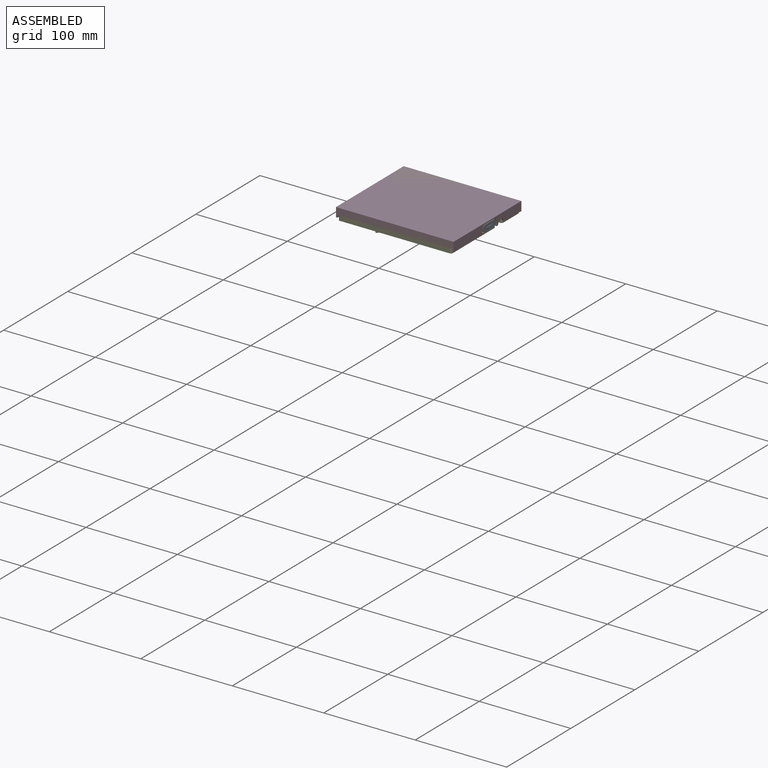
[diagram: assembled view]
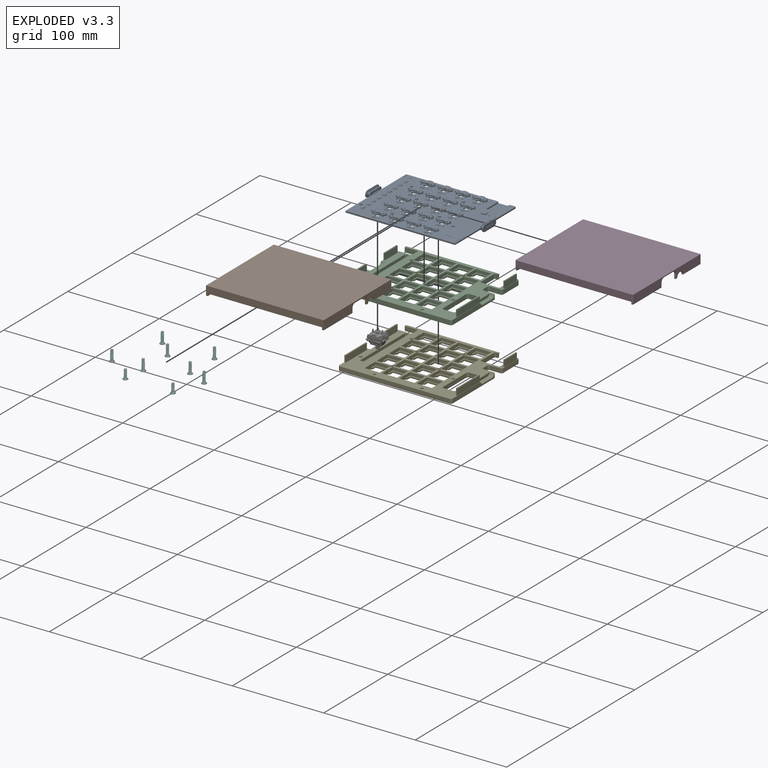
[diagram: exploded view]
GUIDED TOUR — FREECAD ASSEMBLY "slab-case-hackpad"

This assembly has 7 components, labeled P0..P6 below (a component is one placed body or linked part; the same part can appear more than once), held together by 0 modeled joints plus 21 derived contact edges. A joint is a constraint between two components; its type names the relative motion it leaves free:
  CONTACT — a derived adjacency edge — the two components touch in the source model (clearance under 2% of the assembly's diagonal); it is measured from the geometry, not a modeled constraint.
Axis/direction vectors are unit vectors and 'through' points are millimeter coordinates, both in the assembly's world frame.

MATES
  1. CONTACT "contact_0_1": P0 <-> P1, contact direction (0.000, -1.000, 0.000) through (-4.30, -36.93, 3.24) mm (derived from contact, not a modeled constraint)
  2. CONTACT "contact_0_2": P0 <-> P2, contact direction (0.000, 0.000, -1.000) through (77.65, -19.04, 0.00) mm (derived from contact, not a modeled constraint)
  3. CONTACT "contact_0_3": P0 <-> P3, contact direction (1.000, 0.000, 0.000) through (-3.50, -39.95, 5.81) mm (derived from contact, not a modeled constraint)
  4. CONTACT "contact_0_4": P0 <-> P4, contact direction (0.000, 0.000, -1.000) through (96.31, -66.95, 0.00) mm (derived from contact, not a modeled constraint)
  5. CONTACT "contact_0_5": P0 <-> P5, contact direction (0.000, -1.000, 0.000) through (2.25, -75.61, 1.58) mm (derived from contact, not a modeled constraint)
  6. CONTACT "contact_0_6": P0 <-> P6, contact direction (-0.654, -0.741, -0.153) through (24.14, -86.01, 1.59) mm (derived from contact, not a modeled constraint)
  7. CONTACT "contact_1_2": P1 <-> P2, contact direction (0.000, 0.000, -1.000) through (100.81, 0.50, 0.00) mm (derived from contact, not a modeled constraint)
  8. CONTACT "contact_1_3": P1 <-> P3, contact direction (0.000, 0.000, -1.000) through (124.30, -97.30, 0.00) mm (derived from contact, not a modeled constraint)
  9. CONTACT "contact_1_4": P1 <-> P4, contact direction (0.654, 0.741, 0.153) through (100.81, 2.40, 0.00) mm (derived from contact, not a modeled constraint)
  10. CONTACT "contact_1_5": P1 <-> P5, contact direction (0.000, -1.000, 0.000) through (74.16, -19.47, 1.60) mm (derived from contact, not a modeled constraint)
  11. CONTACT "contact_1_6": P1 <-> P6, contact direction (-0.654, -0.741, -0.153) through (34.01, -78.76, 0.79) mm (derived from contact, not a modeled constraint)
  12. CONTACT "contact_2_3": P2 <-> P3, contact direction (0.654, 0.741, 0.153) through (100.93, 0.50, 0.10) mm (derived from contact, not a modeled constraint)
  13. CONTACT "contact_2_4": P2 <-> P4, contact direction (0.654, 0.741, 0.153) through (19.98, -83.57, -5.00) mm (derived from contact, not a modeled constraint)
  14. CONTACT "contact_2_5": P2 <-> P5, contact direction (-0.654, -0.741, -0.153) through (39.63, -74.70, -3.99) mm (derived from contact, not a modeled constraint)
  15. CONTACT "contact_2_6": P2 <-> P6, contact direction (-0.654, -0.741, -0.153) through (36.20, -78.35, -5.01) mm (derived from contact, not a modeled constraint)
  16. CONTACT "contact_3_4": P3 <-> P4, contact direction (0.000, 0.000, -1.000) through (100.78, 2.33, 0.14) mm (derived from contact, not a modeled constraint)
  17. CONTACT "contact_3_5": P3 <-> P5, contact direction (-0.654, -0.741, -0.153) through (85.66, -98.15, 0.01) mm (derived from contact, not a modeled constraint)
  18. CONTACT "contact_3_6": P3 <-> P6, contact direction (-0.654, -0.741, -0.153) through (34.01, -78.76, 0.79) mm (derived from contact, not a modeled constraint)
  19. CONTACT "contact_4_5": P4 <-> P5, contact direction (-0.654, -0.741, -0.153) through (74.82, -17.28, -3.99) mm (derived from contact, not a modeled constraint)
  20. CONTACT "contact_4_6": P4 <-> P6, contact direction (-0.654, -0.741, -0.153) through (35.51, -77.73, -5.41) mm (derived from contact, not a modeled constraint)
  21. CONTACT "contact_5_6": P5 <-> P6, contact direction (-0.654, -0.741, -0.153) through (36.61, -78.37, -5.01) mm (derived from contact, not a modeled constraint)

ASSEMBLY ORDER
  1. P0 — the base component [order heuristic]
  2. P1 — core [order heuristic]
  3. P2 — core [order heuristic]
  4. P3 — core [order heuristic]
  5. P4 — core [order heuristic]
  6. P5 — core [order heuristic]
  7. P6 [order verified]
(P6 verified with a relaxed clearance tolerance: the source model stores slight part interference there.)
Order-tag legend:
  [order verified] — this step's position reverses a verified removal order: the component was checked to insert without passing through the ones already placed.
  [order heuristic] — the first 6 components form the assembly's core: parts whose collision-free extraction could not be verified, listed in mate-graph order.

Of the 7 components, 4 carry a construction recipe — the FreeCAD feature program (sketches with constraints, then the solid features that consume them) that regenerates the part from scratch, quoted from this document or from the linked companion document it references; the rest are supplied as boundary geometry only. The tour below walks the components in assembly order: each is shown spotlighted twice — in the assembled view, then in the exploded view, where a leader line traces a displaced component back to its assembled socket (components that stay in place when exploded have no leader line; saturated green if recipe-attached, orange if geometry-only; every other component desaturated gray) — followed by its recipe or geometry summary and the mates that hold it.
NOTE — this tour is split across 2 documents so each fits a 32k-token context. This is document 1: the component sections continue in the remaining 1 document, each repeating the header above.
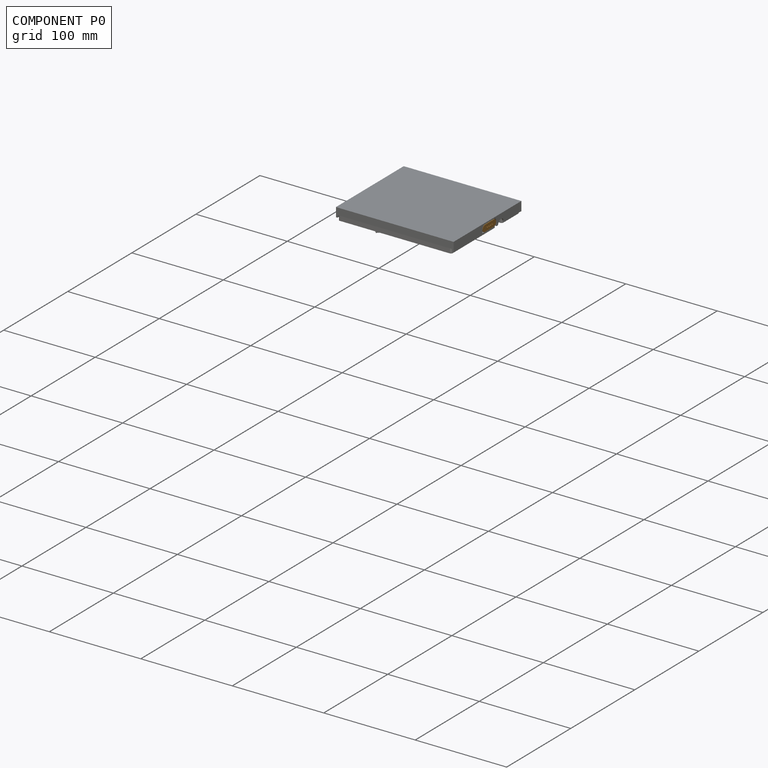
[diagram: component P0 — assembled]
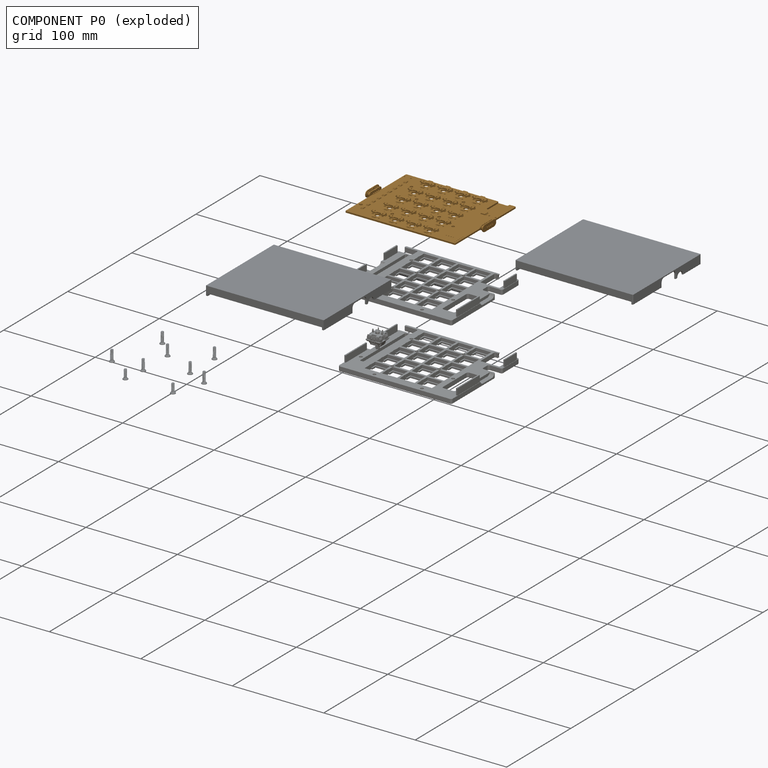
[diagram: component P0 — exploded]
COMPONENT P0 — geometry summary ("PCB"; no construction recipe available for this part):
  bounding box: 129.7 x 96.0 x 10.0 mm
  tessellated surface: 654,534 triangles
  volume: 20786 mm^3 (17% of its bounding box)
Held by: resting contact with P1 (derived edge); resting contact with P2 (derived edge); resting contact with P3 (derived edge); resting contact with P4 (derived edge); resting contact with P5 (derived edge); resting contact with P6 (derived edge).
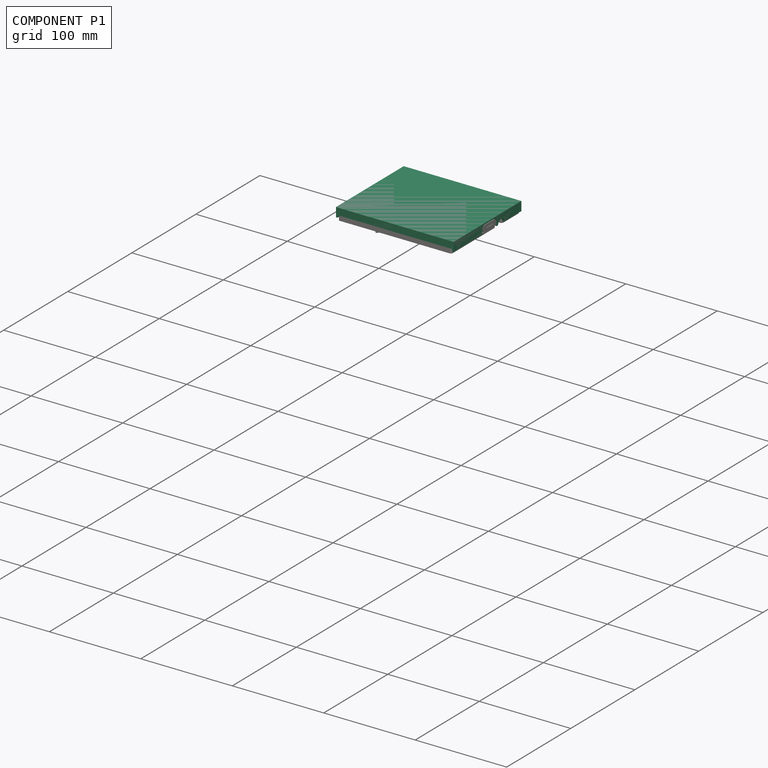
[diagram: component P1 — assembled]
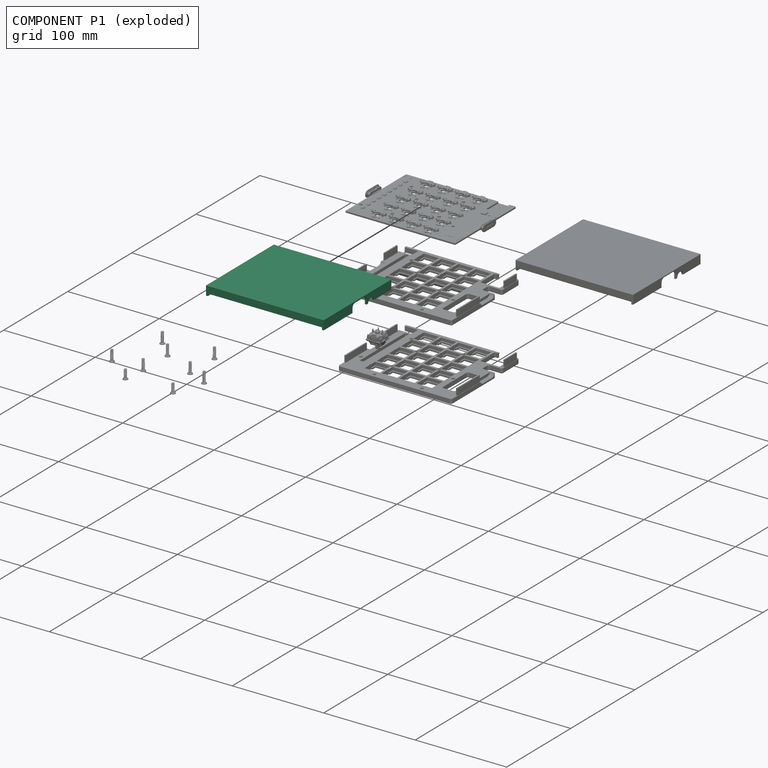
[diagram: component P1 — exploded]
COMPONENT P1 — recipe-attached ("CaseBase", modeled in this document).
Held by: resting contact with P0 (derived edge); resting contact with P2 (derived edge); resting contact with P3 (derived edge); resting contact with P4 (derived edge); resting contact with P5 (derived edge); resting contact with P6 (derived edge).
Construction recipe (the document's own serialized feature program — sketch geometry with constraints, then the solid features built on it; lengths are millimeters unless a unit is written):

FEATURE [Sketcher::SketchObject] Sketch  label="PCBOutline"
  ArcFitTolerance = 1e-06
  AttachmentSupport = -> [XY_Plane024]
  FullyConstrained = true
  MakeInternals = false
  MapMode = 5
  expr: Constraints[29] = Spreadsheet.PCBClearance
  sketch-geometry (18):
    g0: LineSegment [constr] StartX=0 StartY=0 StartZ=0 EndX=0 EndY=-95 EndZ=0
    g1: LineSegment [constr] StartX=0 StartY=-95 StartZ=0 EndX=120 EndY=-95 EndZ=0
    g2: LineSegment [constr] StartX=120 StartY=-95 StartZ=0 EndX=120 EndY=0 EndZ=0
    g3: LineSegment [constr] StartX=120 StartY=0 StartZ=0 EndX=0 EndY=0 EndZ=0
    g4: LineSegment [constr] StartX=-0.5 StartY=0.5 StartZ=0 EndX=-0.5 EndY=-95.5 EndZ=0
    g5: LineSegment StartX=-0.5 StartY=-95.5 StartZ=0 EndX=120.5 EndY=-95.5 EndZ=0
    g6: LineSegment [constr] StartX=120.5 StartY=-95.5 StartZ=0 EndX=120.5 EndY=0.5 EndZ=0
    g7: LineSegment StartX=120.5 StartY=0.5 StartZ=0 EndX=-0.5 EndY=0.5 EndZ=0
    g8: LineSegment [constr] StartX=0 StartY=0 StartZ=0 EndX=-0.5 EndY=0.5 EndZ=0
    g9: LineSegment [constr] StartX=0 StartY=-95 StartZ=0 EndX=-0.5 EndY=-95.5 EndZ=0
    g10: LineSegment [constr] StartX=120 StartY=-95 StartZ=0 EndX=120.5 EndY=-95.5 EndZ=0
    g11: LineSegment [constr] StartX=120 StartY=0 StartZ=0 EndX=120.5 EndY=0.5 EndZ=0
    g12: LineSegment StartX=120.5 StartY=0.5 StartZ=0 EndX=122.5 EndY=0.5 EndZ=0
    g13: LineSegment StartX=122.5 StartY=-95.5 StartZ=0 EndX=120.5 EndY=-95.5 EndZ=0
    g14: LineSegment StartX=122.5 StartY=0.5 StartZ=0 EndX=122.5 EndY=-95.5 EndZ=0
    g15: LineSegment StartX=-0.5 StartY=0.5 StartZ=0 EndX=-2.5 EndY=0.5 EndZ=0
    g16: LineSegment StartX=-2.5 StartY=0.5 StartZ=0 EndX=-2.5 EndY=-95.5 EndZ=0
    g17: LineSegment StartX=-0.5 StartY=-95.5 StartZ=0 EndX=-2.5 EndY=-95.5 EndZ=0
  constraints (47):
    c: Coincident(g0,g1)
    c: Coincident(g1,g2)
    c: Coincident(g2,g3)
    c: Coincident(g3,g0)
    c: Vertical(g0)
    c: Vertical(g2)
    c: Horizontal(g1)
    c: Horizontal(g3)
    c: Coincident(g4,g5)
    c: Coincident(g5,g6)
    c: Coincident(g6,g7)
    c: Coincident(g7,g4)
    c: Vertical(g4)
    c: Vertical(g6)
    c: Horizontal(g5)
    c: Horizontal(g7)
    c: Coincident(g8,g0)
    c: Coincident(g8,g4)
    c: Coincident(g9,g1)
    c: Coincident(g9,g5)
    c: Coincident(g10,g2)
    c: Coincident(g10,g6)
    c: Coincident(g11,g3)
    c: Coincident(g11,g7)
    c: Perpendicular(g8,g9)
    c: Perpendicular(g9,g10)
    c: Perpendicular(g10,g11)
    c: Distance(g0,g2) = 120
    c: Distance(g1,g3) = 95
    c: Distance(g4,g0) = 0.5
    c: Coincident(g0,g-1)
    c: Coincident(g12,g6)
    c: Horizontal(g12)
    c: Coincident(g13,g5)
    c: Horizontal(g13)
    c: Coincident(g14,g12)
    c: Coincident(g14,g13)
    c: Vertical(g14)
    c: DistanceX(g13,g13) = 2
    c: Coincident(g15,g4)
    c: Horizontal(g15)
    c: Coincident(g16,g15)
    c: Vertical(g16)
    c: Coincident(g17,g4)
    c: Coincident(g17,g16)
    c: Horizontal(g17)
    c: Equal(g13,g17)
FEATURE [Sketcher::SketchObject] Sketch001  label="CaseOutline"
  ArcFitTolerance = 1e-06
  AttachmentSupport = -> [XY_Plane024]
  FullyConstrained = true
  MakeInternals = false
  MapMode = 5
  expr: Constraints[23] = Spreadsheet.PCBClearance
  expr: Constraints[24] = Spreadsheet.PCBClearance
  expr: Constraints[25] = Spreadsheet.CaseWallThickness
  expr: Constraints[26] = 95 + Spreadsheet.PCBClearance * 2
  expr: Constraints[27] = 120 + Spreadsheet.PCBClearance * 2
  sketch-geometry (17):
    g0: LineSegment [constr] StartX=-2.3 StartY=2.3 StartZ=0 EndX=-2.3 EndY=-97.3 EndZ=0
    g1: LineSegment [constr] StartX=-2.3 StartY=-97.3 StartZ=0 EndX=122.3 EndY=-97.3 EndZ=0
    g2: LineSegment [constr] StartX=122.3 StartY=-97.3 StartZ=0 EndX=122.3 EndY=2.3 EndZ=0
    g3: LineSegment [constr] StartX=120.5 StartY=0.5 StartZ=0 EndX=-0.5 EndY=0.5 EndZ=0
    g4: LineSegment [constr] StartX=-0.5 StartY=0.5 StartZ=0 EndX=-0.5 EndY=-95.5 EndZ=0
    g5: LineSegment [constr] StartX=-0.5 StartY=-95.5 StartZ=0 EndX=120.5 EndY=-95.5 EndZ=0
    g6: LineSegment [constr] StartX=120.5 StartY=-95.5 StartZ=0 EndX=120.5 EndY=0.5 EndZ=0
    g7: LineSegment [constr] StartX=122.3 StartY=2.3 StartZ=0 EndX=120.5 EndY=0.5 EndZ=0
    g8: LineSegment [constr] StartX=-2.3 StartY=2.3 StartZ=0 EndX=-0.5 EndY=0.5 EndZ=0
    g9: LineSegment [constr] StartX=-2.3 StartY=-97.3 StartZ=0 EndX=-0.5 EndY=-95.5 EndZ=0
    g10: LineSegment [constr] StartX=122.3 StartY=-97.3 StartZ=0 EndX=120.5 EndY=-95.5 EndZ=0
    g11: LineSegment [constr] StartX=-2.3 StartY=-97.3 StartZ=0 EndX=-2.3 EndY=-103.5 EndZ=0
    g12: LineSegment [constr] StartX=122.3 StartY=-97.3 StartZ=0 EndX=122.3 EndY=-103.5 EndZ=0
    g13: LineSegment StartX=124.3 StartY=-103.5 StartZ=0 EndX=124.3 EndY=2.3 EndZ=0
    g14: LineSegment StartX=-4.3 StartY=-103.5 StartZ=0 EndX=-4.3 EndY=2.3 EndZ=0
    g15: LineSegment StartX=-4.3 StartY=-103.5 StartZ=0 EndX=124.3 EndY=-103.5 EndZ=0
    g16: LineSegment StartX=124.3 StartY=2.3 StartZ=0 EndX=-4.3 EndY=2.3 EndZ=0
  constraints (48):
    c: Coincident(g0,g1)
    c: Coincident(g1,g2)
    c: Horizontal(g1)
    c: Vertical(g0)
    c: Vertical(g2)
    c: Coincident(g3,g4)
    c: Coincident(g4,g5)
    c: Coincident(g5,g6)
    c: Coincident(g6,g3)
    c: Horizontal(g3)
    c: Horizontal(g5)
    c: Vertical(g4)
    c: Vertical(g6)
    c: Coincident(g7,g3)
    c: Coincident(g8,g0)
    c: Coincident(g8,g4)
    c: Coincident(g9,g1)
    c: Coincident(g9,g5)
    c: Coincident(g10,g2)
    c: Coincident(g10,g6)
    c: Perpendicular(g7,g8)
    c: Perpendicular(g8,g9)
    c: Perpendicular(g9,g10)
    c: DistanceX(g3,g-1) = 0.5
    c: DistanceY(g-1,g3) = 0.5
    c: DistanceY(g3,g0) = 1.8
    c: DistanceY(g4,g4) = 96
    c: DistanceX(g5,g5) = 121
    c: Coincident(g11,g0)
    c: Vertical(g11)
    c: Coincident(g12,g1)
    c: Vertical(g12)
    c: DistanceY(g11,g4) = 8
    c: Vertical(g13)
    c: DistanceX(g12,g13) = 2
    c: Vertical(g14)
    c: Equal(g14,g13)
    c: Coincident(g15,g14)
    c: Coincident(g15,g13)
    c: Horizontal(g15)
    c: PointOnObject(g11,g15)
    c: Coincident(g16,g13)
    c: Coincident(g16,g14)
    c: PointOnObject(g0,g16)
    c: Coincident(g2,g7)
    c: PointOnObject(g2,g16)
    c: DistanceX(g14,g0) = 2
    c: PointOnObject(g12,g15)
FEATURE [PartDesign::Pad] Pad  label="CaseBody"
  Direction = (0,0,1)
  Length = 7.5
  Length2 = 10
  Profile = -> Sketch001
  ReferenceAxis = -> Sketch001 [N_Axis]
  Suppressed = false
  Type = 0
  expr: Length = Spreadsheet.CaseTotalDepth
FEATURE [Sketcher::SketchObject] Sketch006  label="RailOutlines"
  ArcFitTolerance = 1e-06
  AttachmentOffset = pos=(0,0,0) rot=(0,1,0;3.14159rad)
  AttachmentSupport = -> [XY_Plane024]
  FullyConstrained = true
  MakeInternals = false
  MapMode = 5
  Placement = pos=(0,0,0) rot=(0,1,0;3.14159rad)
  expr: Constraints[11] = Spreadsheet.CaseWallThickness
  expr: Constraints[12] = Spreadsheet.PCBClearance
  expr: Constraints[15] = 8 - Spreadsheet.CaseWallThickness
  expr: Constraints[27] = Spreadsheet.CaseWallThickness
  expr: Constraints[5] = Spreadsheet.PCBClearance + Spreadsheet.CaseWallThickness
  expr: Constraints[6] = Spreadsheet.CaseWallThickness
  expr: Constraints[7] = 95 + Spreadsheet.PCBClearance * 2 + Spreadsheet.CaseWallThickness * 2
  expr: Constraints[8] = Spreadsheet.PCBClearance + 2
  sketch-geometry (16):
    g0: LineSegment StartX=4.3 StartY=2.3 StartZ=0 EndX=2.5 EndY=2.3 EndZ=0
    g1: LineSegment [constr] StartX=2.5 StartY=-97.3 StartZ=0 EndX=4.3 EndY=-97.3 EndZ=0
    g2: LineSegment StartX=4.3 StartY=-97.3 StartZ=0 EndX=4.3 EndY=2.3 EndZ=0
    g3: LineSegment StartX=2.5 StartY=0.5 StartZ=0 EndX=2.5 EndY=-97.3 EndZ=0
    g4: LineSegment StartX=4.3 StartY=-103.5 StartZ=0 EndX=4.3 EndY=-97.3 EndZ=0
    g5: LineSegment StartX=2.5 StartY=-97.3 StartZ=0 EndX=2.5 EndY=-103.5 EndZ=0
    g6: LineSegment StartX=2.5 StartY=-103.5 StartZ=0 EndX=4.3 EndY=-103.5 EndZ=0
    g7: LineSegment StartX=-122.5 StartY=2.3 StartZ=0 EndX=-124.3 EndY=2.3 EndZ=0
    g8: LineSegment StartX=-124.3 StartY=2.3 StartZ=0 EndX=-124.3 EndY=-97.3 EndZ=0
    g9: LineSegment [constr] StartX=-124.3 StartY=-97.3 StartZ=0 EndX=-122.5 EndY=-97.3 EndZ=0
    g10: LineSegment StartX=-122.5 StartY=-97.3 StartZ=0 EndX=-122.5 EndY=2.3 EndZ=0
    g11: LineSegment StartX=-124.3 StartY=-97.3 StartZ=0 EndX=-124.3 EndY=-103.5 EndZ=0
    g12: LineSegment StartX=-124.3 StartY=-103.5 StartZ=0 EndX=-122.5 EndY=-103.5 EndZ=0
    g13: LineSegment StartX=-122.5 StartY=-103.5 StartZ=0 EndX=-122.5 EndY=-97.3 EndZ=0
    g14: LineSegment StartX=2.5 StartY=2.3 StartZ=0 EndX=2.5 EndY=0.5 EndZ=0
    g15: LineSegment [constr] StartX=-122.5 StartY=-103.5 StartZ=0 EndX=2.5 EndY=-103.5 EndZ=0
  constraints (45):
    c: Coincident(g1,g2)
    c: Coincident(g2,g0)
    c: Horizontal(g0)
    c: Horizontal(g1)
    c: Vertical(g2)
    c: DistanceY(g-1,g0) = 2.3
    c: DistanceX(g0,g0) = 1.8
    c: DistanceY(g2,g2) = 99.6
    c: DistanceX(g-1,g0) = 2.5
    c: Coincident(g3,g1)
    c: Vertical(g3)
    c: DistanceX(g1,g1) = 1.8
    c: DistanceY(g-1,g3) = 0.5
    c: Coincident(g4,g1)
    c: Vertical(g4)
    c: DistanceY(g4,g4) = 6.2
    c: Coincident(g5,g1)
    c: Vertical(g5)
    c: Coincident(g6,g5)
    c: Coincident(g6,g4)
    c: Horizontal(g6)
    c: Coincident(g8,g7)
    c: Vertical(g8)
    c: Coincident(g9,g8)
    c: Horizontal(g9)
    c: DistanceX(g9,g9) = 1.8
    c: Horizontal(g7)
    c: DistanceX(g7,g7) = 1.8
    c: Coincident(g11,g8)
    c: Vertical(g11)
    c: Coincident(g12,g11)
    c: Horizontal(g12)
    c: Coincident(g13,g12)
    c: Vertical(g13)
    c: Equal(g13,g4)
    c: Coincident(g14,g0)
    c: Coincident(g14,g3)
    c: Coincident(g10,g13)
    c: Coincident(g9,g10)
    c: DistanceX(g7,g-1) = 122.5
    c: DistanceY(g-1,g7) = 2.3
    c: Coincident(g10,g7)
    c: Coincident(g15,g12)
    c: Coincident(g15,g5)
    c: Horizontal(g15)
FEATURE [PartDesign::Pad] Pad002  label="Rails"
  BaseFeature = -> Pad
  Direction = (1e-16,0,-1)
  Length = 2.5
  Length2 = 10
  Profile = -> Sketch006
  ReferenceAxis = -> Sketch006 [N_Axis]
  Suppressed = false
  Type = 0
FEATURE [PartDesign::Pocket] Pocket  label="PCBPocket"
  BaseFeature = -> Pad002
  Direction = (0,0,-1)
  Length = 7.1
  Length2 = 5
  Profile = -> Sketch
  ReferenceAxis = -> Sketch [N_Axis]
  Reversed = true
  Suppressed = false
  Type = 0
  expr: Length = Spreadsheet.CaseInternalDepth
FEATURE [Sketcher::SketchObject] Sketch002  label="ScrewInsertHolesOutline"
  ArcFitTolerance = 1e-06
  AttacherType = Attacher::AttachEngine3D
  AttachmentSupport = -> [Pocket]
  FullyConstrained = true
  MakeInternals = false
  MapMode = 5
  Placement = pos=(0,0,7.1) rot=(1,0,0;3.14159rad)
  expr: Constraints[0] = Spreadsheet.ThreadedInsertHoleExternalDiameter
  expr: Constraints[1] = Spreadsheet.ThreadedInsertHoleInternalDiameter
  sketch-geometry (17):
    g0: Circle CenterX=19 CenterY=19 CenterZ=0 NormalX=0 NormalY=0 NormalZ=1 AngleXU=0 Radius=4
    g1: Circle CenterX=19 CenterY=19 CenterZ=0 NormalX=0 NormalY=0 NormalZ=1 AngleXU=0 Radius=2.3
    g2: Circle CenterX=38 CenterY=38 CenterZ=0 NormalX=0 NormalY=0 NormalZ=1 AngleXU=0 Radius=4
    g3: Circle CenterX=38 CenterY=38 CenterZ=0 NormalX=0 NormalY=0 NormalZ=1 AngleXU=0 Radius=2.3
    g4: Circle CenterX=76 CenterY=19 CenterZ=0 NormalX=0 NormalY=0 NormalZ=1 AngleXU=0 Radius=4
    g5: Circle CenterX=76 CenterY=19 CenterZ=0 NormalX=0 NormalY=0 NormalZ=1 AngleXU=0 Radius=2.3
    g6: Circle CenterX=76 CenterY=57 CenterZ=0 NormalX=0 NormalY=0 NormalZ=1 AngleXU=0 Radius=4
    g7: Circle CenterX=76 CenterY=57 CenterZ=0 NormalX=0 NormalY=0 NormalZ=1 AngleXU=0 Radius=2.3
    g8: Circle CenterX=97.9 CenterY=66.5 CenterZ=0 NormalX=0 NormalY=0 NormalZ=1 AngleXU=0 Radius=4
    g9: Circle CenterX=97.9 CenterY=66.5 CenterZ=0 NormalX=0 NormalY=0 NormalZ=1 AngleXU=0 Radius=2.3
    g10: Circle CenterX=3.75 CenterY=76 CenterZ=0 NormalX=0 NormalY=0 NormalZ=1 AngleXU=0 Radius=4
    g11: Circle CenterX=3.75 CenterY=76 CenterZ=0 NormalX=0 NormalY=0 NormalZ=1 AngleXU=0 Radius=2.3
    g12: Circle CenterX=38 CenterY=76 CenterZ=0 NormalX=0 NormalY=0 NormalZ=1 AngleXU=0 Radius=4
    g13: Circle CenterX=38 CenterY=76 CenterZ=0 NormalX=0 NormalY=0 NormalZ=1 AngleXU=0 Radius=2.3
    g14: LineSegment [constr] StartX=76 StartY=19 StartZ=0 EndX=19 EndY=19 EndZ=0
    g15: LineSegment [constr] StartX=76 StartY=19 StartZ=0 EndX=76 EndY=57 EndZ=0
    g16: LineSegment [constr] StartX=3.75 StartY=76 StartZ=0 EndX=38 EndY=76 EndZ=0
  constraints (41):
    c: Diameter(g0) = 8
    c: Diameter(g1) = 4.6
    c: Coincident(g1,g0)
    c: DistanceX(g-1,g0) = 19
    c: DistanceY(g-1,g0) = 19
    c: Diameter(g2) = 8
    c: Diameter(g4) = 8
    c: Diameter(g6) = 8
    c: Diameter(g8) = 8
    c: Diameter(g10) = 8
    c: Diameter(g12) = 8
    c: Diameter(g3) = 4.6
    c: Diameter(g5) = 4.6
    c: Diameter(g7) = 4.6
    c: Diameter(g9) = 4.6
    c: Diameter(g11) = 4.6
    c: Diameter(g13) = 4.6
    c: Coincident(g3,g2)
    c: Coincident(g5,g4)
    c: Coincident(g7,g6)
    c: Coincident(g9,g8)
    c: Coincident(g11,g10)
    c: Coincident(g13,g12)
    c: Coincident(g14,g4)
    c: Coincident(g14,g0)
    c: Horizontal(g14)
    c: Coincident(g15,g4)
    c: Coincident(g15,g6)
    c: Vertical(g15)
    c: DistanceX(g14,g14) = 57
    c: DistanceY(g0,g2) = 19
    c: DistanceY(g15,g15) = 38
    c: DistanceX(g0,g2) = 19
    c: DistanceX(g6,g8) = 21.9
    c: DistanceX(g12,g8) = 59.9
    c: DistanceY(g8,g12) = 9.5
    c: DistanceY(g6,g8) = 9.5
    c: DistanceX(g10,g12) = 34.25
    c: Coincident(g16,g10)
    c: Coincident(g16,g12)
    c: Horizontal(g16)
FEATURE [PartDesign::Pad] Pad001  label="ScrewInsertHoles"
  BaseFeature = -> Pocket
  Direction = (0,0,-1)
  Length = 5.5
  Length2 = 10
  Profile = -> Sketch002
  ReferenceAxis = -> Sketch002 [N_Axis]
  Suppressed = false
  Type = 0
  expr: Length = Spreadsheet.ThreadedInsertHoleDepth
FEATURE [Sketcher::SketchObject] Sketch005  label="USBPortHoleOutline"
  ArcFitTolerance = 1e-06
  AttacherType = Attacher::AttachEngine3D
  AttachmentSupport = -> [Pad001]
  FullyConstrained = true
  MakeInternals = false
  MapMode = 5
  Placement = pos=(0,2.3,0) rot=(0,0.707107,0.707107;3.14159rad)
  expr: Constraints[35] = Spreadsheet.PCBUSBPortClearance
  expr: Constraints[38] = Spreadsheet.PCBCalculatedZ - 4.8
  sketch-geometry (18):
    g0: LineSegment [constr] StartX=-113 StartY=-2.4 StartZ=0 EndX=-113 EndY=-3.2 EndZ=0
    g1: LineSegment [constr] StartX=-111 StartY=-5.2 StartZ=0 EndX=-103 EndY=-5.2 EndZ=0
    g2: LineSegment [constr] StartX=-101 StartY=-3.2 StartZ=0 EndX=-101 EndY=-2.4 EndZ=0
    g3: LineSegment [constr] StartX=-103 StartY=-0.4 StartZ=0 EndX=-111 EndY=-0.4 EndZ=0
    g4: ArcOfCircle [constr] CenterX=-111 CenterY=-2.4 CenterZ=0 NormalX=0 NormalY=0 NormalZ=1 AngleXU=0 Radius=2 StartAngle=1.5708 EndAngle=3.14159
    g5: ArcOfCircle [constr] CenterX=-111 CenterY=-3.2 CenterZ=0 NormalX=0 NormalY=0 NormalZ=1 AngleXU=0 Radius=2 StartAngle=3.14159 EndAngle=4.71239
    g6: ArcOfCircle [constr] CenterX=-103 CenterY=-3.2 CenterZ=0 NormalX=0 NormalY=0 NormalZ=1 AngleXU=0 Radius=2 StartAngle=4.71239 EndAngle=6.28319
    g7: ArcOfCircle [constr] CenterX=-103 CenterY=-2.4 CenterZ=0 NormalX=0 NormalY=0 NormalZ=1 AngleXU=0 Radius=2 StartAngle=1e-16 EndAngle=1.5708
    g8: LineSegment StartX=-114.25 StartY=-2.4 StartZ=0 EndX=-114.25 EndY=-3.2 EndZ=0
    g9: LineSegment StartX=-111 StartY=-6.45 StartZ=0 EndX=-103 EndY=-6.45 EndZ=0
    g10: LineSegment StartX=-99.75 StartY=-3.2 StartZ=0 EndX=-99.75 EndY=-2.4 EndZ=0
    g11: LineSegment StartX=-103 StartY=0.85 StartZ=0 EndX=-111 EndY=0.85 EndZ=0
    g12: ArcOfCircle CenterX=-111 CenterY=-2.4 CenterZ=0 NormalX=0 NormalY=0 NormalZ=1 AngleXU=0 Radius=3.25 StartAngle=1.5708 EndAngle=3.14159
    g13: ArcOfCircle CenterX=-111 CenterY=-3.2 CenterZ=0 NormalX=0 NormalY=0 NormalZ=1 AngleXU=0 Radius=3.25 StartAngle=3.14159 EndAngle=4.71239
    g14: ArcOfCircle CenterX=-103 CenterY=-3.2 CenterZ=0 NormalX=0 NormalY=0 NormalZ=1 AngleXU=0 Radius=3.25 StartAngle=4.71239 EndAngle=6.28319
    g15: ArcOfCircle CenterX=-103 CenterY=-2.4 CenterZ=0 NormalX=0 NormalY=0 NormalZ=1 AngleXU=0 Radius=3.25 StartAngle=0 EndAngle=1.5708
    g16: GeomPoint [constr] X=-113 Y=-0.4 Z=0
    g17: GeomPoint [constr] X=-101 Y=-5.2 Z=0
  constraints (40):
    c: Tangent(g0,g4) = -1.5708
    c: Tangent(g0,g5) = -1.5708
    c: Tangent(g1,g5) = -1.5708
    c: Tangent(g1,g6) = -1.5708
    c: Tangent(g2,g6) = -1.5708
    c: Tangent(g2,g7) = -1.5708
    c: Tangent(g3,g7) = -1.5708
    c: Tangent(g3,g4) = -1.5708
    c: Vertical(g0)
    c: Vertical(g2)
    c: Horizontal(g1)
    c: Horizontal(g3)
    c: Equal(g4,g5)
    c: Equal(g5,g6)
    c: Equal(g6,g7)
    c: Tangent(g8,g12) = -1.5708
    c: Tangent(g8,g13) = -1.5708
    c: Tangent(g9,g13) = -1.5708
    c: Tangent(g9,g14) = -1.5708
    c: Tangent(g10,g14) = -1.5708
    c: Tangent(g10,g15) = -1.5708
    c: Tangent(g11,g15) = -1.5708
    c: Tangent(g11,g12) = -1.5708
    c: Coincident(g4,g12)
    c: Coincident(g5,g13)
    c: Coincident(g6,g14)
    c: Coincident(g7,g15)
    c: Vertical(g8)
    c: Vertical(g10)
    c: Horizontal(g9)
    c: PointOnObject(g16,g0)
    c: PointOnObject(g16,g3)
    c: PointOnObject(g17,g1)
    c: PointOnObject(g17,g2)
    c: Radius(g5) = 2
    c: Distance(g8,g0) = 1.25
    c: DistanceY(g0,g0) = 0.8
    c: DistanceX(g1,g1) = 8
    c: DistanceY(g-1,g5) = -3.2
    c: DistanceX(g3,g-1) = 103
FEATURE [PartDesign::Pocket] Pocket003  label="USBPortHole"
  BaseFeature = -> Pad001
  Direction = (0,-1,2e-16)
  Length = 30
  Length2 = 5
  Profile = -> Sketch005
  ReferenceAxis = -> Sketch005 [N_Axis]
  Suppressed = false
  Type = 0
FEATURE [Sketcher::SketchObject] Sketch008  label="TRRS_R_Outline"
  ArcFitTolerance = 1e-06
  AttachmentSupport = -> [Pocket003]
  FullyConstrained = true
  MakeInternals = false
  MapMode = 5
  Placement = pos=(-4.3,0,0) rot=(0.57735,-0.57735,-0.57735;2.0944rad)
  sketch-geometry (3):
    g0: GeomPoint [constr] X=5 Y=-2.5 Z=0
    g1: GeomPoint [constr] X=5 Y=-2.5 Z=0
    g2: Circle CenterX=5 CenterY=-2.5 CenterZ=0 NormalX=0 NormalY=0 NormalZ=1 AngleXU=0 Radius=4.5
  constraints (5):
    c: DistanceX(g-1,g0) = 5
    c: DistanceY(g0,g-1) = 2.5
    c: Coincident(g1,g0)
    c: Diameter(g2) = 9
    c: Coincident(g2,g0)
FEATURE [PartDesign::Pocket] Pocket004  label="TRRS_R_Pocket"
  BaseFeature = -> Pocket003
  Direction = (1,0,0)
  Length = 5
  Length2 = 5
  Profile = -> Sketch008
  ReferenceAxis = -> Sketch008 [N_Axis]
  Suppressed = false
  Type = 0
FEATURE [Sketcher::SketchObject] Sketch009  label="TRRS_L_Outline"
  ArcFitTolerance = 1e-06
  AttachmentSupport = -> [Pocket004]
  FullyConstrained = true
  MakeInternals = false
  MapMode = 5
  Placement = pos=(124.3,0,0) rot=(0.57735,0.57735,0.57735;2.0944rad)
  sketch-geometry (2):
    g0: GeomPoint X=-29.5 Y=-2.5 Z=0
    g1: Circle CenterX=-29.5 CenterY=-2.5 CenterZ=0 NormalX=0 NormalY=0 NormalZ=1 AngleXU=0 Radius=4.5
  constraints (4):
    c: DistanceY(g-1,g0) = -2.5
    c: DistanceX(g0,g-1) = 29.5
    c: Diameter(g1) = 9
    c: Coincident(g1,g0)
FEATURE [PartDesign::Pocket] Pocket005  label="TRRS_L_Pocket"
  BaseFeature = -> Pocket004
  Direction = (-1,0,0)
  Length = 5
  Length2 = 5
  Profile = -> Sketch009
  ReferenceAxis = -> Sketch009 [N_Axis]
  Suppressed = false
  Type = 0
FEATURE [Sketcher::SketchObject] Sketch004  label="MagnetOutlineL"
  ArcFitTolerance = 1e-06
  AttachmentSupport = -> [Pocket005]
  FullyConstrained = true
  MakeInternals = false
  MapMode = 5
  Placement = pos=(124.3,0,0) rot=(0.57735,0.57735,0.57735;2.0944rad)
  expr: Constraints[19] = Spreadsheet.PCBCalculatedZ + 0.5
  sketch-geometry (8):
    g0: LineSegment StartX=-58.5 StartY=2.1 StartZ=0 EndX=-58.5 EndY=-17.9 EndZ=0
    g1: LineSegment StartX=-36.5 StartY=2.1 StartZ=0 EndX=-36.5 EndY=-17.9 EndZ=0
    g2: ArcOfCircle CenterX=-54.5 CenterY=2.1 CenterZ=0 NormalX=0 NormalY=0 NormalZ=1 AngleXU=0 Radius=4 StartAngle=1.5708 EndAngle=3.14159
    g3: ArcOfCircle CenterX=-40.5 CenterY=2.1 CenterZ=0 NormalX=0 NormalY=0 NormalZ=1 AngleXU=0 Radius=4 StartAngle=5.36e-14 EndAngle=1.5708
    g4: LineSegment StartX=-54.5 StartY=6.1 StartZ=0 EndX=-40.5 EndY=6.1 EndZ=0
    g5: LineSegment [constr] StartX=-54.5 StartY=2.1 StartZ=0 EndX=-58.5 EndY=2.1 EndZ=0
    g6: LineSegment [constr] StartX=-36.5 StartY=2.1 StartZ=0 EndX=-40.5 EndY=2.1 EndZ=0
    g7: LineSegment StartX=-58.5 StartY=-17.9 StartZ=0 EndX=-36.5 EndY=-17.9 EndZ=0
  constraints (24):
    c: Vertical(g0)
    c: Equal(g0,g1)
    c: Vertical(g1)
    c: Angle(g2) = 1.5708
    c: Coincident(g2,g0)
    c: Coincident(g1,g3)
    c: Coincident(g4,g2)
    c: Coincident(g4,g3)
    c: Horizontal(g4)
    c: DistanceY(g0,g0) = 20
    c: DistanceX(g0,g1) = 22
    c: Radius(g2) = 4
    c: Radius(g3) = 4
    c: Angle(g3) = 1.5708
    c: Coincident(g5,g2)
    c: Coincident(g5,g0)
    c: Horizontal(g5)
    c: Coincident(g6,g1)
    c: Coincident(g6,g3)
    c: DistanceY(g-1,g3) = 2.1
    c: DistanceX(g3,g-1) = 40.5
    c: Coincident(g7,g0)
    c: Coincident(g7,g1)
    c: Horizontal(g7)
FEATURE [PartDesign::Pocket] Pocket002  label="MagnetLPocket"
  BaseFeature = -> Pocket005
  Direction = (-1,0,0)
  Length = 30
  Length2 = 5
  Profile = -> Sketch004
  ReferenceAxis = -> Sketch004 [N_Axis]
  Suppressed = false
  Type = 0
FEATURE [Sketcher::SketchObject] Sketch010  label="MagnetOutlineR"
  ArcFitTolerance = 1e-06
  AttachmentSupport = -> [Pocket002]
  FullyConstrained = true
  MakeInternals = false
  MapMode = 5
  Placement = pos=(-4.3,0,0) rot=(0.57735,-0.57735,-0.57735;2.0944rad)
  expr: Constraints[19] = Spreadsheet.PCBCalculatedZ + 0.5
  sketch-geometry (8):
    g0: LineSegment StartX=36.5 StartY=2.1 StartZ=0 EndX=36.5 EndY=-17.9 EndZ=0
    g1: LineSegment StartX=58.5 StartY=2.1 StartZ=0 EndX=58.5 EndY=-17.9 EndZ=0
    g2: ArcOfCircle CenterX=40.5 CenterY=2.1 CenterZ=0 NormalX=0 NormalY=0 NormalZ=1 AngleXU=0 Radius=4 StartAngle=1.5708 EndAngle=3.14159
    g3: ArcOfCircle CenterX=54.5 CenterY=2.1 CenterZ=0 NormalX=0 NormalY=0 NormalZ=1 AngleXU=0 Radius=4 StartAngle=5.34e-14 EndAngle=1.5708
    g4: LineSegment StartX=40.5 StartY=6.1 StartZ=0 EndX=54.5 EndY=6.1 EndZ=0
    g5: LineSegment [constr] StartX=40.5 StartY=2.1 StartZ=0 EndX=36.5 EndY=2.1 EndZ=0
    g6: LineSegment [constr] StartX=58.5 StartY=2.1 StartZ=0 EndX=54.5 EndY=2.1 EndZ=0
    g7: LineSegment StartX=36.5 StartY=-17.9 StartZ=0 EndX=58.5 EndY=-17.9 EndZ=0
  constraints (24):
    c: Vertical(g0)
    c: Equal(g0,g1)
    c: Vertical(g1)
    c: Angle(g2) = 1.5708
    c: Coincident(g2,g0)
    c: Coincident(g1,g3)
    c: Coincident(g4,g2)
    c: Coincident(g4,g3)
    c: Horizontal(g4)
    c: DistanceY(g0,g0) = 20
    c: DistanceX(g0,g1) = 22
    c: Radius(g2) = 4
    c: Radius(g3) = 4
    c: Angle(g3) = 1.5708
    c: Coincident(g5,g2)
    c: Coincident(g5,g0)
    c: Horizontal(g5)
    c: Coincident(g6,g1)
    c: Coincident(g6,g3)
    c: DistanceY(g-1,g3) = 2.1
    c: DistanceX(g-1,g2) = 40.5
    c: Coincident(g7,g0)
    c: Coincident(g7,g1)
    c: Horizontal(g7)
FEATURE [PartDesign::Pocket] Pocket006  label="MagnetRPocket"
  BaseFeature = -> Pocket002
  Direction = (1,0,0)
  Length = 30
  Length2 = 5
  Profile = -> Sketch010
  ReferenceAxis = -> Sketch010 [N_Axis]
  Suppressed = false
  Type = 0
FEATURE [Sketcher::SketchObject] Sketch014  label="PlateScrewInsertOutline"
  ArcFitTolerance = 1e-06
  AttachmentSupport = -> [Pocket006]
  FullyConstrained = true
  MakeInternals = false
  MapMode = 5
  Placement = pos=(0,0,0) rot=(1,0,0;3.14159rad)
  expr: Constraints[1] = Spreadsheet.ThreadedInsertHoleInternalDiameter
  sketch-geometry (5):
    g0: Circle CenterX=35 CenterY=99.5 CenterZ=0 NormalX=0 NormalY=0 NormalZ=1 AngleXU=0 Radius=2.3
    g1: Circle CenterX=87 CenterY=99.5 CenterZ=0 NormalX=0 NormalY=0 NormalZ=1 AngleXU=0 Radius=2.3
    g2: LineSegment [constr] StartX=35 StartY=99.5 StartZ=0 EndX=87 EndY=99.5 EndZ=0
    g3: LineSegment [constr] StartX=35 StartY=99.5 StartZ=0 EndX=0 EndY=99.5 EndZ=0
    g4: LineSegment [constr] StartX=87 StartY=99.5 StartZ=0 EndX=122 EndY=99.5 EndZ=0
  constraints (14):
    c: Equal(g0,g1)
    c: Diameter(g0) = 4.6
    c: Coincident(g2,g0)
    c: Coincident(g2,g1)
    c: Horizontal(g2)
    c: Coincident(g3,g0)
    c: PointOnObject(g3,g-2)
    c: Horizontal(g3)
    c: Coincident(g4,g1)
    c: Horizontal(g4)
    c: Equal(g3,g4)
    c: DistanceX(g3,g3) = 35
    c: DistanceX(g3,g4) = 122
    c: DistanceY(g-1,g0) = 99.5
FEATURE [PartDesign::Pocket] Pocket013  label="PlateScrewInsertHole"
  BaseFeature = -> Pocket006
  Direction = (0,0,1)
  Length = 5.5
  Length2 = 5
  Profile = -> Sketch014
  ReferenceAxis = -> Sketch014 [N_Axis]
  Suppressed = false
  Type = 0
  expr: Length = Spreadsheet.ThreadedInsertHoleDepth
FEATURE [Sketcher::SketchObject] Sketch029
  ArcFitTolerance = 1e-06
  AttachmentSupport = -> [Pocket013]
  FullyConstrained = true
  MakeInternals = false
  MapMode = 5
  Placement = pos=(0,0,7.5) rot=(0,0,1;0rad)
  sketch-geometry (4):
    g0: LineSegment StartX=116 StartY=-77.5 StartZ=0 EndX=116 EndY=-94.5 EndZ=0
    g1: LineSegment StartX=116 StartY=-94.5 StartZ=0 EndX=120 EndY=-94.5 EndZ=0
    g2: LineSegment StartX=120 StartY=-94.5 StartZ=0 EndX=120 EndY=-77.5 EndZ=0
    g3: LineSegment StartX=120 StartY=-77.5 StartZ=0 EndX=116 EndY=-77.5 EndZ=0
  constraints (12):
    c: Coincident(g0,g1)
    c: Coincident(g1,g2)
    c: Coincident(g2,g3)
    c: Coincident(g3,g0)
    c: Vertical(g0)
    c: Vertical(g2)
    c: Horizontal(g1)
    c: Horizontal(g3)
    c: Distance(g0,g2) = 4
    c: Distance(g1,g3) = 17
    c: DistanceX(g-1,g0) = 116
    c: DistanceY(g0,g-1) = 77.5
FEATURE [PartDesign::Body] Body  label="CaseBase"
  AllowCompound = false
  Group = -> [Sketch,Sketch001,Pad,Pad002,Pocket,Sketch004,Sketch002,Pad001,Sketch005,Pocket003,Sketch006,Sketch008,Pocket004,Sketch009,Pocket005,Pocket002,Sketch010,Pocket006,Sketch014,Pocket013,Sketch029]
  Origin = -> Origin024
  Tip = -> Pocket013
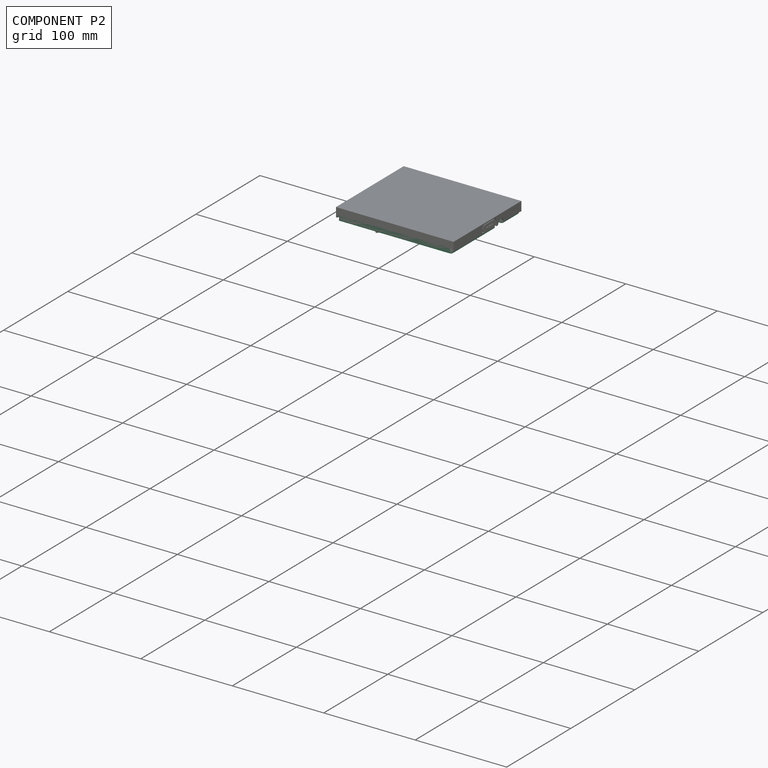
[diagram: component P2 — assembled]
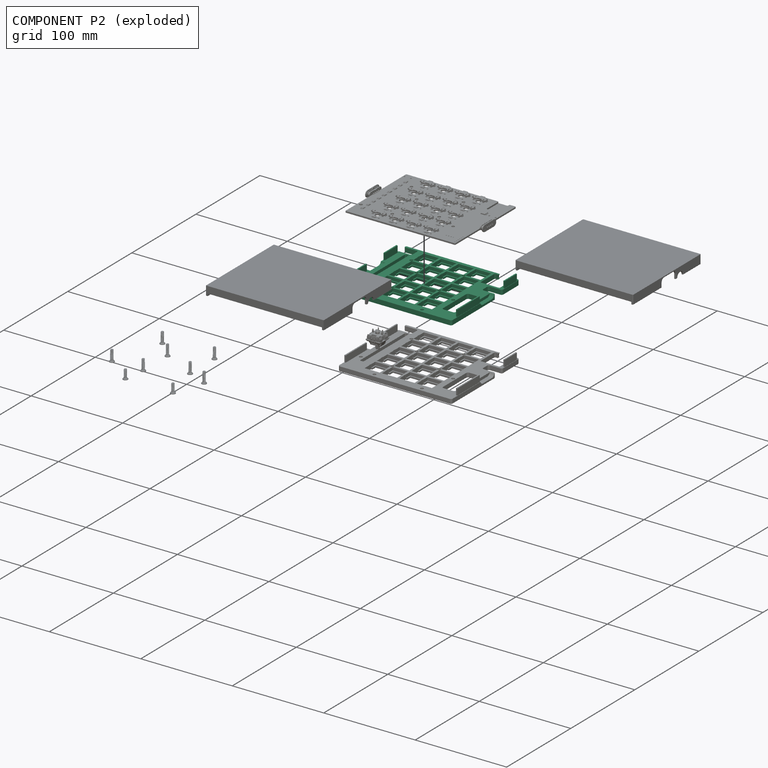
[diagram: component P2 — exploded]
COMPONENT P2 — recipe-attached ("PlateBase", modeled in this document).
Held by: resting contact with P0 (derived edge); resting contact with P1 (derived edge); resting contact with P3 (derived edge); resting contact with P4 (derived edge); resting contact with P5 (derived edge); resting contact with P6 (derived edge).
Construction recipe (the document's own serialized feature program — sketch geometry with constraints, then the solid features built on it; lengths are millimeters unless a unit is written):

FEATURE [Sketcher::SketchObject] Sketch012  label="PlateOutline"
  ArcFitTolerance = 1e-06
  AttachmentOffset = pos=(0,0,-5) rot=(0,0,1;0rad)
  AttachmentSupport = -> [XY_Plane027]
  FullyConstrained = true
  MakeInternals = false
  MapMode = 5
  Placement = pos=(0,0,-5) rot=(0,0,1;0rad)
  expr: Constraints[17] = 0.5 + 1
  sketch-geometry (9):
    g0: LineSegment StartX=-2 StartY=1.5 StartZ=0 EndX=-2 EndY=-101.5 EndZ=0
    g1: LineSegment StartX=-6e-16 StartY=-103.5 StartZ=0 EndX=120 EndY=-103.5 EndZ=0
    g2: LineSegment StartX=122 StartY=-101.5 StartZ=0 EndX=122 EndY=0.5 EndZ=0
    g3: LineSegment StartX=120 StartY=2.5 StartZ=0 EndX=-1 EndY=2.5 EndZ=0
    g4: ArcOfCircle CenterX=-1 CenterY=1.5 CenterZ=0 NormalX=0 NormalY=0 NormalZ=1 AngleXU=0 Radius=1 StartAngle=1.5708 EndAngle=3.14159
    g5: ArcOfCircle CenterX=-2e-16 CenterY=-101.5 CenterZ=0 NormalX=0 NormalY=0 NormalZ=1 AngleXU=0 Radius=2 StartAngle=3.14159 EndAngle=4.71239
    g6: ArcOfCircle CenterX=120 CenterY=-101.5 CenterZ=0 NormalX=0 NormalY=0 NormalZ=1 AngleXU=0 Radius=2 StartAngle=4.71239 EndAngle=6.28319
    g7: ArcOfCircle CenterX=120 CenterY=0.5 CenterZ=0 NormalX=0 NormalY=0 NormalZ=1 AngleXU=0 Radius=2 StartAngle=0 EndAngle=1.5708
    g8: GeomPoint [constr] X=122 Y=-103.5 Z=0
  constraints (22):
    c: Tangent(g0,g4) = -1.5708
    c: Tangent(g0,g5) = -1.5708
    c: Tangent(g1,g5) = -1.5708
    c: Tangent(g1,g6) = -1.5708
    c: Tangent(g2,g6) = -1.5708
    c: Tangent(g2,g7) = -1.5708
    c: Tangent(g3,g7) = -1.5708
    c: Tangent(g3,g4) = -1.5708
    c: Vertical(g0)
    c: Vertical(g2)
    c: Horizontal(g1)
    c: Horizontal(g3)
    c: Equal(g5,g6)
    c: Equal(g6,g7)
    c: PointOnObject(g8,g1)
    c: PointOnObject(g8,g2)
    c: Radius(g5) = 2
    c: DistanceY(g-1,g4) = 1.5
    c: DistanceY(g1,g3) = 106
    c: DistanceX(g0,g-1) = 2
    c: DistanceX(g0,g2) = 124
    c: Radius(g4) = 1
FEATURE [PartDesign::Pad] Pad003  label="PlateBody"
  Direction = (0,0,1)
  Length = 5
  Length2 = 10
  Profile = -> Sketch012
  ReferenceAxis = -> Sketch012 [N_Axis]
  Suppressed = false
  Type = 0
FEATURE [Sketcher::SketchObject] Sketch015  label="CaseMountingScrewOutline"
  ArcFitTolerance = 1e-06
  AttachmentSupport = -> [Pad003]
  FullyConstrained = true
  MakeInternals = false
  MapMode = 5
  Placement = pos=(0,0,-5) rot=(1,0,0;3.14159rad)
  sketch-geometry (5):
    g0: Circle CenterX=35 CenterY=99.5 CenterZ=0 NormalX=0 NormalY=0 NormalZ=1 AngleXU=0 Radius=1.6
    g1: Circle CenterX=87 CenterY=99.5 CenterZ=0 NormalX=0 NormalY=0 NormalZ=1 AngleXU=0 Radius=1.6
    g2: LineSegment [constr] StartX=35 StartY=99.5 StartZ=0 EndX=87 EndY=99.5 EndZ=0
    g3: LineSegment [constr] StartX=35 StartY=99.5 StartZ=0 EndX=0 EndY=99.5 EndZ=0
    g4: LineSegment [constr] StartX=122 StartY=99.5 StartZ=0 EndX=87 EndY=99.5 EndZ=0
  constraints (14):
    c: Diameter(g0) = 3.2
    c: Coincident(g2,g0)
    c: Coincident(g2,g1)
    c: Horizontal(g2)
    c: Coincident(g3,g0)
    c: PointOnObject(g3,g-2)
    c: Horizontal(g3)
    c: DistanceX(g3,g3) = 35
    c: DistanceY(g-1,g0) = 99.5
    c: Coincident(g4,g1)
    c: Horizontal(g4)
    c: DistanceX(g-1,g4) = 122
    c: Equal(g3,g4)
    c: Equal(g0,g1)
FEATURE [Sketcher::SketchObject] Sketch016  label="KeyOutline"
  ArcFitTolerance = 1e-06
  AttachmentSupport = -> [Pad003]
  FullyConstrained = true
  MakeInternals = false
  MapMode = 5
  Placement = pos=(0,0,-5) rot=(1,0,0;3.14159rad)
  sketch-geometry (8):
    g0: LineSegment StartX=21.525 StartY=2.525 StartZ=0 EndX=35.525 EndY=2.525 EndZ=0
    g1: LineSegment StartX=35.525 StartY=2.525 StartZ=0 EndX=35.525 EndY=16.525 EndZ=0
    g2: LineSegment StartX=35.525 StartY=16.525 StartZ=0 EndX=21.525 EndY=16.525 EndZ=0
    g3: LineSegment StartX=21.525 StartY=16.525 StartZ=0 EndX=21.525 EndY=2.525 EndZ=0
    g4: GeomPoint [constr] X=21.525 Y=16.525 Z=0
    g5: GeomPoint [constr] X=35.525 Y=16.525 Z=0
    g6: GeomPoint [constr] X=21.525 Y=2.525 Z=0
    g7: GeomPoint [constr] X=35.525 Y=2.525 Z=0
  constraints (16):
    c: Horizontal(g2)
    c: Vertical(g3)
    c: Distance(g7,g6) = 14
    c: Distance(g6,g4) = 14
    c: DistanceX(g-1,g6) = 21.525
    c: DistanceY(g-1,g6) = 2.525
    c: Coincident(g2,g4)
    c: Coincident(g3,g4)
    c: Coincident(g2,g5)
    c: Coincident(g3,g6)
    c: Coincident(g0,g3)
    c: Coincident(g7,g1)
    c: Coincident(g0,g1)
    c: Coincident(g1,g2)
    c: Vertical(g1)
    c: Horizontal(g0)
FEATURE [PartDesign::Pocket] Pocket009  label="KeyHole"
  BaseFeature = -> Pad003
  Direction = (0,0,1)
  Length = 5
  Length2 = 5
  Profile = -> Sketch016
  ReferenceAxis = -> Sketch016 [N_Axis]
  Suppressed = false
  Type = 0
FEATURE [PartDesign::LinearPattern] LinearPattern  label="KeyHolePatternX"
  Direction = -> X_Axis027
  Length = 57
  Mode = 1
  Occurrences = 4
  Offset = 19
  Suppressed = false
  TransformMode = 0
FEATURE [PartDesign::LinearPattern] LinearPattern001  label="KeyHolePatternY"
  Direction = -> Y_Axis027
  Length = 76
  Mode = 1
  Occurrences = 5
  Offset = 19
  Reversed = true
  Suppressed = false
  TransformMode = 0
FEATURE [PartDesign::MultiTransform] MultiTransform  label="KeyHoleArray"
  BaseFeature = -> Pocket009
  Originals = -> [Pocket009]
  Suppressed = false
  TransformMode = 0
  Transformations = -> [LinearPattern,LinearPattern001]
FEATURE [Sketcher::SketchObject] Sketch018  label="LEDBarOutline"
  ArcFitTolerance = 1e-06
  AttachmentSupport = -> [MultiTransform]
  FullyConstrained = true
  MakeInternals = false
  MapMode = 5
  Placement = pos=(0,0,-5) rot=(1,0,0;3.14159rad)
  sketch-geometry (12):
    g0: LineSegment StartX=8.35 StartY=12 StartZ=0 EndX=10.35 EndY=12 EndZ=0
    g1: LineSegment StartX=11.35 StartY=13 StartZ=0 EndX=11.35 EndY=82 EndZ=0
    g2: LineSegment StartX=10.35 StartY=83 StartZ=0 EndX=8.35 EndY=83 EndZ=0
    g3: LineSegment StartX=7.35 StartY=82 StartZ=0 EndX=7.35 EndY=13 EndZ=0
    g4: ArcOfCircle CenterX=8.35 CenterY=13 CenterZ=0 NormalX=0 NormalY=0 NormalZ=1 AngleXU=0 Radius=1 StartAngle=3.14159 EndAngle=4.71239
    g5: ArcOfCircle CenterX=10.35 CenterY=13 CenterZ=0 NormalX=0 NormalY=0 NormalZ=1 AngleXU=0 Radius=1 StartAngle=4.71239 EndAngle=6.28319
    g6: ArcOfCircle CenterX=10.35 CenterY=82 CenterZ=0 NormalX=0 NormalY=0 NormalZ=1 AngleXU=0 Radius=1 StartAngle=6.2e-15 EndAngle=1.5708
    g7: ArcOfCircle CenterX=8.35 CenterY=82 CenterZ=0 NormalX=0 NormalY=0 NormalZ=1 AngleXU=0 Radius=1 StartAngle=1.5708 EndAngle=3.14159
    g8: GeomPoint [constr] X=7.35 Y=12 Z=0
    g9: GeomPoint [constr] X=11.35 Y=83 Z=0
    g10: LineSegment [constr] StartX=8.35 StartY=13 StartZ=0 EndX=10.35 EndY=13 EndZ=0
    g11: GeomPoint [constr] X=9.35 Y=13 Z=0
  constraints (27):
    c: Tangent(g0,g4) = -1.5708
    c: Tangent(g0,g5) = -1.5708
    c: Tangent(g1,g5) = -1.5708
    c: Tangent(g1,g6) = -1.5708
    c: Tangent(g2,g6) = -1.5708
    c: Tangent(g2,g7) = -1.5708
    c: Tangent(g3,g7) = -1.5708
    c: Tangent(g3,g4) = -1.5708
    c: Horizontal(g0)
    c: Horizontal(g2)
    c: Vertical(g1)
    c: Vertical(g3)
    c: Equal(g4,g5)
    c: Equal(g5,g6)
    c: Equal(g6,g7)
    c: PointOnObject(g8,g0)
    c: PointOnObject(g8,g3)
    c: PointOnObject(g9,g1)
    c: PointOnObject(g9,g2)
    c: DistanceY(g-1,g4) = 13
    c: DistanceY(g3,g3) = 69
    c: Radius(g5) = 1
    c: DistanceX(g2,g2) = 2
    c: Coincident(g10,g4)
    c: Coincident(g10,g5)
    c: Symmetric(g4,g5,g11)
    c: DistanceX(g-1,g11) = 9.35
FEATURE [PartDesign::Pocket] Pocket011  label="LEDBarPocket"
  BaseFeature = -> MultiTransform
  Direction = (0,0,1)
  Length = 5
  Length2 = 5
  Profile = -> Sketch018
  ReferenceAxis = -> Sketch018 [N_Axis]
  Suppressed = false
  Type = 0
FEATURE [Sketcher::SketchObject] Sketch019  label="KeySwitchOutline"
  ArcFitTolerance = 1e-06
  AttachmentSupport = -> [Pocket011]
  FullyConstrained = true
  MakeInternals = false
  MapMode = 5
  Placement = pos=(0,0,2.7e-15) rot=(0,0,1;0rad)
  sketch-geometry (10):
    g0: LineSegment StartX=20.275 StartY=-1.275 StartZ=0 EndX=20.275 EndY=-17.775 EndZ=0
    g1: LineSegment StartX=20.275 StartY=-17.775 StartZ=0 EndX=36.775 EndY=-17.775 EndZ=0
    g2: LineSegment StartX=36.775 StartY=-17.775 StartZ=0 EndX=36.775 EndY=-1.275 EndZ=0
    g3: LineSegment StartX=36.775 StartY=-1.275 StartZ=0 EndX=20.275 EndY=-1.275 EndZ=0
    g4: LineSegment [constr] StartX=21.525 StartY=-2.525 StartZ=0 EndX=21.525 EndY=-16.525 EndZ=0
    g5: LineSegment [constr] StartX=21.525 StartY=-16.525 StartZ=0 EndX=35.525 EndY=-16.525 EndZ=0
    g6: LineSegment [constr] StartX=35.525 StartY=-16.525 StartZ=0 EndX=35.525 EndY=-2.525 EndZ=0
    g7: LineSegment [constr] StartX=35.525 StartY=-2.525 StartZ=0 EndX=21.525 EndY=-2.525 EndZ=0
    g8: LineSegment [constr] StartX=20.275 StartY=-1.275 StartZ=0 EndX=36.775 EndY=-17.775 EndZ=0
    g9: LineSegment [constr] StartX=20.275 StartY=-17.775 StartZ=0 EndX=36.775 EndY=-1.275 EndZ=0
  constraints (28):
    c: Coincident(g0,g1)
    c: Coincident(g1,g2)
    c: Coincident(g2,g3)
    c: Coincident(g3,g0)
    c: Vertical(g0)
    c: Vertical(g2)
    c: Horizontal(g1)
    c: Horizontal(g3)
    c: Distance(g0,g2) = 16.5
    c: Distance(g1,g3) = 16.5
    c: Coincident(g4,g5)
    c: Coincident(g5,g6)
    c: Coincident(g6,g7)
    c: Coincident(g7,g4)
    c: Vertical(g4)
    c: Vertical(g6)
    c: Horizontal(g5)
    c: Horizontal(g7)
    c: Distance(g4,g6) = 14
    c: Distance(g5,g7) = 14
    c: Coincident(g8,g0)
    c: Coincident(g8,g1)
    c: Coincident(g9,g0)
    c: Coincident(g9,g2)
    c: PointOnObject(g4,g8)
    c: PointOnObject(g6,g9)
    c: DistanceX(g-1,g4) = 21.525
    c: DistanceY(g4,g-1) = 2.525
FEATURE [PartDesign::Pocket] Pocket012  label="KeySwitchPocket"
  BaseFeature = -> Pocket011
  Direction = (0,0,-1)
  Length = 3.4
  Length2 = 5
  Profile = -> Sketch019
  ReferenceAxis = -> Sketch019 [N_Axis]
  Suppressed = false
  Type = 0
FEATURE [PartDesign::LinearPattern] LinearPattern002  label="KeySwitchPatternX"
  Direction = -> X_Axis027
  Length = 57
  Mode = 1
  Occurrences = 4
  Offset = 19
  Suppressed = false
  TransformMode = 0
FEATURE [PartDesign::LinearPattern] LinearPattern003  label="KeySwitchPatternY"
  Direction = -> Y_Axis027
  Length = 76
  Mode = 1
  Occurrences = 5
  Offset = 19
  Reversed = true
  Suppressed = false
  TransformMode = 0
FEATURE [PartDesign::MultiTransform] MultiTransform001  label="KeySwitchArray"
  BaseFeature = -> Pocket012
  Originals = -> [Pocket012]
  Suppressed = false
  TransformMode = 0
  Transformations = -> [LinearPattern002,LinearPattern003]
FEATURE [Sketcher::SketchObject] Sketch020  label="KeyPullOutline"
  ArcFitTolerance = 1e-06
  AttachmentSupport = -> [XY_Plane027]
  FullyConstrained = true
  MakeInternals = false
  MapMode = 5
  sketch-geometry (16):
    g0: LineSegment [constr] StartX=20.275 StartY=-1.275 StartZ=0 EndX=20.275 EndY=-17.775 EndZ=0
    g1: LineSegment [constr] StartX=20.275 StartY=-17.775 StartZ=0 EndX=36.775 EndY=-17.775 EndZ=0
    g2: LineSegment [constr] StartX=36.775 StartY=-17.775 StartZ=0 EndX=36.775 EndY=-1.275 EndZ=0
    g3: LineSegment [constr] StartX=36.775 StartY=-1.275 StartZ=0 EndX=20.275 EndY=-1.275 EndZ=0
    g4: LineSegment [constr] StartX=20.275 StartY=-17.775 StartZ=0 EndX=20.275 EndY=-11.475 EndZ=0
    g5: LineSegment StartX=20.275 StartY=-11.475 StartZ=0 EndX=19.975 EndY=-11.475 EndZ=0
    g6: LineSegment [constr] StartX=20.275 StartY=-1.275 StartZ=0 EndX=20.275 EndY=-7.575 EndZ=0
    g7: LineSegment StartX=20.275 StartY=-7.575 StartZ=0 EndX=19.975 EndY=-7.575 EndZ=0
    g8: LineSegment StartX=19.975 StartY=-11.475 StartZ=0 EndX=19.975 EndY=-7.575 EndZ=0
    g9: LineSegment [constr] StartX=36.775 StartY=-1.275 StartZ=0 EndX=36.775 EndY=-7.575 EndZ=0
    g10: LineSegment StartX=36.775 StartY=-7.575 StartZ=0 EndX=37.075 EndY=-7.575 EndZ=0
    g11: LineSegment StartX=37.075 StartY=-7.575 StartZ=0 EndX=37.075 EndY=-11.475 EndZ=0
    g12: LineSegment StartX=37.075 StartY=-11.475 StartZ=0 EndX=36.775 EndY=-11.475 EndZ=0
    g13: LineSegment [constr] StartX=36.775 StartY=-11.475 StartZ=0 EndX=36.775 EndY=-17.775 EndZ=0
    g14: LineSegment StartX=20.275 StartY=-7.575 StartZ=0 EndX=36.775 EndY=-7.575 EndZ=0
    g15: LineSegment StartX=36.775 StartY=-11.475 StartZ=0 EndX=20.275 EndY=-11.475 EndZ=0
  constraints (44):
    c: Coincident(g0,g1)
    c: Coincident(g1,g2)
    c: Coincident(g2,g3)
    c: Coincident(g3,g0)
    c: Vertical(g0)
    c: Vertical(g2)
    c: Horizontal(g1)
    c: Horizontal(g3)
    c: Distance(g0,g2) = 16.5
    c: Distance(g1,g3) = 16.5
    c: Distance(g4) = 6.3
    c: Vertical(g4)
    c: Coincident(g0,g4)
    c: Distance(g5) = 0.3
    c: Horizontal(g5)
    c: Coincident(g5,g4)
    c: Coincident(g6,g0)
    c: Vertical(g6)
    c: Equal(g4,g6)
    c: Coincident(g7,g6)
    c: Equal(g5,g7)
    c: Coincident(g8,g5)
    c: Coincident(g8,g7)
    c: Vertical(g8)
    c: Coincident(g9,g2)
    c: Vertical(g9)
    c: Coincident(g10,g9)
    c: Coincident(g11,g10)
    c: Vertical(g11)
    c: Coincident(g12,g11)
    c: Coincident(g13,g12)
    c: Coincident(g13,g1)
    c: Vertical(g13)
    c: Horizontal(g10)
    c: Horizontal(g12)
    c: Equal(g7,g10)
    c: Equal(g9,g6)
    c: Equal(g13,g4)
    c: DistanceX(g-1,g0) = 20.275
    c: DistanceY(g0,g-1) = 1.275
    c: Coincident(g14,g6)
    c: Coincident(g14,g9)
    c: Coincident(g15,g12)
    c: Coincident(g15,g4)
FEATURE [PartDesign::Pocket] Pocket014  label="KeyPullPocket"
  BaseFeature = -> MultiTransform001
  Direction = (0,0,-1)
  Length = 5
  Length2 = 5
  Profile = -> Sketch020
  ReferenceAxis = -> Sketch020 [N_Axis]
  Suppressed = false
  Type = 0
FEATURE [PartDesign::LinearPattern] LinearPattern004  label="KeyPullPatternX"
  Direction = -> X_Axis027
  Length = 57
  Mode = 1
  Occurrences = 4
  Offset = 19
  Suppressed = false
  TransformMode = 0
FEATURE [PartDesign::LinearPattern] LinearPattern005  label="KeyPullPatternY"
  Direction = -> Y_Axis027
  Length = 76
  Mode = 1
  Occurrences = 5
  Offset = 19
  Reversed = true
  Suppressed = false
  TransformMode = 0
FEATURE [PartDesign::MultiTransform] MultiTransform002  label="KeyPullArray"
  BaseFeature = -> Pocket014
  Originals = -> [Pocket014]
  Suppressed = false
  TransformMode = 0
  Transformations = -> [LinearPattern004,LinearPattern005]
FEATURE [Sketcher::SketchObject] Sketch021  label="XiaoOutline"
  ArcFitTolerance = 1e-06
  AttachmentSupport = -> [MultiTransform002]
  FullyConstrained = true
  MakeInternals = false
  MapMode = 5
  Placement = pos=(0,0,-5) rot=(1,0,0;3.14159rad)
  sketch-geometry (26):
    g0: LineSegment StartX=116.5 StartY=-0.5 StartZ=0 EndX=97.5 EndY=-0.5 EndZ=0
    g1: LineSegment StartX=96.5 StartY=0.5 StartZ=0 EndX=96.5 EndY=21 EndZ=0
    g2: LineSegment StartX=97.5 StartY=22 StartZ=0 EndX=116.5 EndY=22 EndZ=0
    g3: LineSegment StartX=117.5 StartY=21 StartZ=0 EndX=117.5 EndY=0.5 EndZ=0
    g4: LineSegment StartX=100.6 StartY=86 StartZ=0 EndX=100.6 EndY=50 EndZ=0
    g5: LineSegment StartX=102.6 StartY=48 StartZ=0 EndX=112.6 EndY=48 EndZ=0
    g6: LineSegment StartX=114.6 StartY=50 StartZ=0 EndX=114.6 EndY=86 EndZ=0
    g7: LineSegment StartX=112.6 StartY=88 StartZ=0 EndX=102.6 EndY=88 EndZ=0
    g8: ArcOfCircle CenterX=97.5 CenterY=0.5 CenterZ=0 NormalX=0 NormalY=0 NormalZ=1 AngleXU=0 Radius=1 StartAngle=3.14159 EndAngle=4.71239
    g9: GeomPoint [constr] X=96.5 Y=-0.5 Z=0
    g10: ArcOfCircle CenterX=116.5 CenterY=0.5 CenterZ=0 NormalX=0 NormalY=0 NormalZ=1 AngleXU=0 Radius=1 StartAngle=4.71239 EndAngle=6.28319
    g11: ArcOfCircle CenterX=97.5 CenterY=21 CenterZ=0 NormalX=0 NormalY=0 NormalZ=1 AngleXU=0 Radius=1 StartAngle=1.5708 EndAngle=3.14159
    g12: GeomPoint [constr] X=96.5 Y=22 Z=0
    g13: ArcOfCircle CenterX=116.5 CenterY=21 CenterZ=0 NormalX=0 NormalY=0 NormalZ=1 AngleXU=0 Radius=1 StartAngle=8e-16 EndAngle=1.5708
    g14: GeomPoint [constr] X=117.5 Y=22 Z=0
    g15: LineSegment [constr] StartX=100.8 StartY=-2.5 StartZ=0 EndX=0 EndY=-2.5 EndZ=0
    g16: ArcOfCircle CenterX=102.6 CenterY=86 CenterZ=0 NormalX=0 NormalY=0 NormalZ=1 AngleXU=0 Radius=2 StartAngle=1.5708 EndAngle=3.14159
    g17: GeomPoint [constr] X=100.6 Y=88 Z=0
    g18: ArcOfCircle CenterX=112.6 CenterY=86 CenterZ=0 NormalX=0 NormalY=0 NormalZ=1 AngleXU=0 Radius=2 StartAngle=-1.8e-15 EndAngle=1.5708
    g19: GeomPoint [constr] X=114.6 Y=88 Z=0
    g20: ArcOfCircle CenterX=112.6 CenterY=50 CenterZ=0 NormalX=0 NormalY=0 NormalZ=1 AngleXU=0 Radius=2 StartAngle=4.71239 EndAngle=6.28319
    g21: GeomPoint [constr] X=114.6 Y=48 Z=0
    g22: ArcOfCircle CenterX=102.6 CenterY=50 CenterZ=0 NormalX=0 NormalY=0 NormalZ=1 AngleXU=0 Radius=2 StartAngle=3.14159 EndAngle=4.71239
    g23: GeomPoint [constr] X=100.6 Y=48 Z=0
    g24: LineSegment [constr] StartX=117.5 StartY=0.5 StartZ=0 EndX=116.5 EndY=0.5 EndZ=0
    g25: LineSegment [constr] StartX=116.5 StartY=0.5 StartZ=0 EndX=116.5 EndY=-0.5 EndZ=0
  constraints (63):
    c: Horizontal(g0)
    c: Vertical(g1)
    c: Horizontal(g2)
    c: Vertical(g3)
    c: Vertical(g4)
    c: Vertical(g6)
    c: Horizontal(g5)
    c: Horizontal(g7)
    c: Distance(g17,g19) = 14
    c: Distance(g23,g17) = 40
    c: PointOnObject(g9,g0)
    c: PointOnObject(g9,g1)
    c: Tangent(g0,g8) = 1.5708
    c: Tangent(g1,g8) = 1.5708
    c: Tangent(g3,g10) = 1.5708
    c: Equal(g8,g10)
    c: Radius(g8) = 1
    c: PointOnObject(g12,g2)
    c: PointOnObject(g12,g1)
    c: Tangent(g2,g11) = 1.5708
    c: Tangent(g1,g11) = 1.5708
    c: PointOnObject(g14,g3)
    c: PointOnObject(g14,g2)
    c: Tangent(g3,g13) = 1.5708
    c: Tangent(g2,g13) = 1.5708
    c: Equal(g8,g11)
    c: Equal(g13,g8)
    c: DistanceY(g3,g3) = 20.5
    c: DistanceX(g-1,g15) = 100.8
    c: PointOnObject(g15,g-2)
    c: Horizontal(g15)
    c: DistanceY(g15,g0) = 2
    c: DistanceY(g15,g-1) = 2.5
    c: PointOnObject(g17,g4)
    c: PointOnObject(g17,g7)
    c: Tangent(g4,g16) = -1.5708
    c: Tangent(g7,g16) = -1.5708
    c: PointOnObject(g19,g6)
    c: PointOnObject(g19,g7)
    c: Tangent(g6,g18) = -1.5708
    c: Tangent(g7,g18) = -1.5708
    c: PointOnObject(g21,g5)
    c: PointOnObject(g21,g6)
    c: Tangent(g5,g20) = -1.5708
    c: Tangent(g6,g20) = -1.5708
    c: PointOnObject(g23,g5)
    c: PointOnObject(g23,g4)
    c: Tangent(g5,g22) = -1.5708
    c: Tangent(g4,g22) = -1.5708
    c: Equal(g16,g18)
    c: Equal(g18,g20)
    c: Equal(g20,g22)
    c: Radius(g16) = 2
    c: DistanceX(g-1,g17) = 100.6
    c: DistanceY(g-1,g17) = 88
    c: Coincident(g10,g0)
    c: Coincident(g24,g3)
    c: Coincident(g24,g10)
    c: Coincident(g25,g10)
    c: Coincident(g25,g0)
    c: Vertical(g25)
    c: DistanceX(g12,g14) = 21
    c: DistanceX(g-1,g9) = 96.5
FEATURE [PartDesign::Pocket] Pocket015  label="XiaoPocket"
  BaseFeature = -> MultiTransform002
  Direction = (0,0,1)
  Length = 5
  Length2 = 5
  Profile = -> Sketch021
  ReferenceAxis = -> Sketch021 [N_Axis]
  Suppressed = false
  Type = 0
FEATURE [Sketcher::SketchObject] Sketch022  label="TRRS_L_PlateOutline"
  ArcFitTolerance = 1e-06
  AttachmentSupport = -> [Pocket015]
  FullyConstrained = true
  MakeInternals = false
  MapMode = 5
  Placement = pos=(0,0,-5) rot=(1,0,0;3.14159rad)
  sketch-geometry (20):
    g0: LineSegment StartX=120 StartY=34.5 StartZ=0 EndX=109 EndY=34.5 EndZ=0
    g1: LineSegment StartX=107 StartY=32.5 StartZ=0 EndX=107 EndY=26.5 EndZ=0
    g2: LineSegment StartX=109 StartY=24.5 StartZ=0 EndX=120 EndY=24.5 EndZ=0
    g3: LineSegment [constr] StartX=120 StartY=24.5 StartZ=0 EndX=120 EndY=34.5 EndZ=0
    g4: ArcOfCircle CenterX=109 CenterY=32.5 CenterZ=0 NormalX=0 NormalY=0 NormalZ=1 AngleXU=0 Radius=2 StartAngle=1.5708 EndAngle=3.14159
    g5: ArcOfCircle CenterX=109 CenterY=26.5 CenterZ=0 NormalX=0 NormalY=0 NormalZ=1 AngleXU=0 Radius=2 StartAngle=3.14159 EndAngle=4.71239
    g6: GeomPoint [constr] X=120 Y=34.5 Z=0
    g7: GeomPoint [constr] X=107 Y=24.5 Z=0
    g8: LineSegment StartX=120 StartY=34.5 StartZ=0 EndX=120.001 EndY=34.5 EndZ=0
    g9: LineSegment StartX=120.001 StartY=24.5 StartZ=0 EndX=120 EndY=24.5 EndZ=0
    g10: LineSegment StartX=122.001 StartY=36.5 StartZ=0 EndX=122.001 EndY=39.5 EndZ=0
    g11: LineSegment StartX=122.001 StartY=22.5 StartZ=0 EndX=122.001 EndY=19.5 EndZ=0
    g12: LineSegment StartX=122.001 StartY=19.5 StartZ=0 EndX=127.001 EndY=19.5 EndZ=0
    g13: LineSegment StartX=127.001 StartY=19.5 StartZ=0 EndX=127.001 EndY=39.5 EndZ=0
    g14: LineSegment StartX=127.001 StartY=39.5 StartZ=0 EndX=122.001 EndY=39.5 EndZ=0
    g15: LineSegment [constr] StartX=122.001 StartY=24.5 StartZ=0 EndX=122.001 EndY=34.5 EndZ=0
    g16: ArcOfCircle CenterX=120.001 CenterY=36.5 CenterZ=0 NormalX=0 NormalY=0 NormalZ=1 AngleXU=0 Radius=2 StartAngle=4.71239 EndAngle=6.28319
    g17: GeomPoint [constr] X=122.001 Y=34.5 Z=0
    g18: ArcOfCircle CenterX=120.001 CenterY=22.5 CenterZ=0 NormalX=0 NormalY=0 NormalZ=1 AngleXU=0 Radius=2 StartAngle=-1.759e-13 EndAngle=1.5708
    g19: GeomPoint [constr] X=122.001 Y=24.5 Z=0
  constraints (50):
    c: Tangent(g0,g4) = -1.5708
    c: Tangent(g1,g4) = -1.5708
    c: Tangent(g1,g5) = -1.5708
    c: Tangent(g2,g5) = -1.5708
    c: Horizontal(g0)
    c: Horizontal(g2)
    c: Vertical(g1)
    c: Vertical(g3)
    c: Equal(g4,g5)
    c: PointOnObject(g6,g0)
    c: PointOnObject(g6,g3)
    c: PointOnObject(g7,g1)
    c: PointOnObject(g7,g2)
    c: Distance(g0,g2) = 10
    c: Radius(g4) = 2
    c: Coincident(g2,g3)
    c: Coincident(g3,g0)
    c: DistanceY(g-1,g2) = 24.5
    c: DistanceX(g-1,g2) = 120
    c: DistanceX(g1,g6) = 13
    c: Coincident(g8,g6)
    c: Horizontal(g8)
    c: Coincident(g9,g2)
    c: Horizontal(g9)
    c: Vertical(g10)
    c: Vertical(g11)
    c: Coincident(g12,g11)
    c: Horizontal(g12)
    c: Coincident(g13,g12)
    c: Vertical(g13)
    c: Coincident(g14,g13)
    c: Coincident(g14,g10)
    c: Horizontal(g14)
    c: Coincident(g15,g19)
    c: Coincident(g15,g17)
    c: Vertical(g15)
    c: DistanceX(g8,g17) = 2.001
    c: DistanceX(g12,g12) = 5
    c: DistanceY(g17,g10) = 5
    c: PointOnObject(g17,g8)
    c: PointOnObject(g17,g10)
    c: Tangent(g8,g16) = -1.5708
    c: Tangent(g10,g16) = -1.5708
    c: PointOnObject(g19,g11)
    c: PointOnObject(g19,g9)
    c: Tangent(g11,g18) = 1.5708
    c: Tangent(g9,g18) = -1.5708
    c: Equal(g16,g18)
    c: Radius(g18) = 2
    c: DistanceY(g13,g13) = 20
FEATURE [PartDesign::Pocket] Pocket016  label="TRRS_L_PlatePocket"
  BaseFeature = -> Pocket015
  Direction = (0,0,1)
  Length = 5
  Length2 = 5
  Profile = -> Sketch022
  ReferenceAxis = -> Sketch022 [N_Axis]
  Suppressed = false
  Type = 0
FEATURE [Sketcher::SketchObject] Sketch023  label="USBPortHole2"
  ArcFitTolerance = 1e-06
  AttacherType = Attacher::AttachEngine3D
  AttachmentSupport = -> [Pocket016]
  FullyConstrained = true
  MakeInternals = false
  MapMode = 5
  Placement = pos=(0,2.5,0) rot=(0,0.707107,0.707107;3.14159rad)
  expr: Constraints[35] = Spreadsheet.PCBUSBPortClearance
  expr: Constraints[38] = Spreadsheet.PCBCalculatedZ - 4.8
  sketch-geometry (18):
    g0: LineSegment [constr] StartX=-113 StartY=-2.4 StartZ=0 EndX=-113 EndY=-3.2 EndZ=0
    g1: LineSegment [constr] StartX=-111 StartY=-5.2 StartZ=0 EndX=-103 EndY=-5.2 EndZ=0
    g2: LineSegment [constr] StartX=-101 StartY=-3.2 StartZ=0 EndX=-101 EndY=-2.4 EndZ=0
    g3: LineSegment [constr] StartX=-103 StartY=-0.4 StartZ=0 EndX=-111 EndY=-0.4 EndZ=0
    g4: ArcOfCircle [constr] CenterX=-111 CenterY=-2.4 CenterZ=0 NormalX=0 NormalY=0 NormalZ=1 AngleXU=0 Radius=2 StartAngle=1.5708 EndAngle=3.14159
    g5: ArcOfCircle [constr] CenterX=-111 CenterY=-3.2 CenterZ=0 NormalX=0 NormalY=0 NormalZ=1 AngleXU=0 Radius=2 StartAngle=3.14159 EndAngle=4.71239
    g6: ArcOfCircle [constr] CenterX=-103 CenterY=-3.2 CenterZ=0 NormalX=0 NormalY=0 NormalZ=1 AngleXU=0 Radius=2 StartAngle=4.71239 EndAngle=6.28319
    g7: ArcOfCircle [constr] CenterX=-103 CenterY=-2.4 CenterZ=0 NormalX=0 NormalY=0 NormalZ=1 AngleXU=0 Radius=2 StartAngle=1e-16 EndAngle=1.5708
    g8: LineSegment StartX=-114.25 StartY=-2.4 StartZ=0 EndX=-114.25 EndY=-3.2 EndZ=0
    g9: LineSegment StartX=-111 StartY=-6.45 StartZ=0 EndX=-103 EndY=-6.45 EndZ=0
    g10: LineSegment StartX=-99.75 StartY=-3.2 StartZ=0 EndX=-99.75 EndY=-2.4 EndZ=0
    g11: LineSegment StartX=-103 StartY=0.85 StartZ=0 EndX=-111 EndY=0.85 EndZ=0
    g12: ArcOfCircle CenterX=-111 CenterY=-2.4 CenterZ=0 NormalX=0 NormalY=0 NormalZ=1 AngleXU=0 Radius=3.25 StartAngle=1.5708 EndAngle=3.14159
    g13: ArcOfCircle CenterX=-111 CenterY=-3.2 CenterZ=0 NormalX=0 NormalY=0 NormalZ=1 AngleXU=0 Radius=3.25 StartAngle=3.14159 EndAngle=4.71239
    g14: ArcOfCircle CenterX=-103 CenterY=-3.2 CenterZ=0 NormalX=0 NormalY=0 NormalZ=1 AngleXU=0 Radius=3.25 StartAngle=4.71239 EndAngle=6.28319
    g15: ArcOfCircle CenterX=-103 CenterY=-2.4 CenterZ=0 NormalX=0 NormalY=0 NormalZ=1 AngleXU=0 Radius=3.25 StartAngle=0 EndAngle=1.5708
    g16: GeomPoint [constr] X=-113 Y=-0.4 Z=0
    g17: GeomPoint [constr] X=-101 Y=-5.2 Z=0
  constraints (40):
    c: Tangent(g0,g4) = -1.5708
    c: Tangent(g0,g5) = -1.5708
    c: Tangent(g1,g5) = -1.5708
    c: Tangent(g1,g6) = -1.5708
    c: Tangent(g2,g6) = -1.5708
    c: Tangent(g2,g7) = -1.5708
    c: Tangent(g3,g7) = -1.5708
    c: Tangent(g3,g4) = -1.5708
    c: Vertical(g0)
    c: Vertical(g2)
    c: Horizontal(g1)
    c: Horizontal(g3)
    c: Equal(g4,g5)
    c: Equal(g5,g6)
    c: Equal(g6,g7)
    c: Tangent(g8,g12) = -1.5708
    c: Tangent(g8,g13) = -1.5708
    c: Tangent(g9,g13) = -1.5708
    c: Tangent(g9,g14) = -1.5708
    c: Tangent(g10,g14) = -1.5708
    c: Tangent(g10,g15) = -1.5708
    c: Tangent(g11,g15) = -1.5708
    c: Tangent(g11,g12) = -1.5708
    c: Coincident(g4,g12)
    c: Coincident(g5,g13)
    c: Coincident(g6,g14)
    c: Coincident(g7,g15)
    c: Vertical(g8)
    c: Vertical(g10)
    c: Horizontal(g9)
    c: PointOnObject(g16,g0)
    c: PointOnObject(g16,g3)
    c: PointOnObject(g17,g1)
    c: PointOnObject(g17,g2)
    c: Radius(g5) = 2
    c: Distance(g8,g0) = 1.25
    c: DistanceY(g0,g0) = 0.8
    c: DistanceX(g1,g1) = 8
    c: DistanceY(g-1,g5) = -3.2
    c: DistanceX(g3,g-1) = 103
FEATURE [PartDesign::Pocket] Pocket017  label="USBPocket"
  BaseFeature = -> Pocket016
  Direction = (0,-1,2e-16)
  Length = 10
  Length2 = 5
  Profile = -> Sketch023
  ReferenceAxis = -> Sketch023 [N_Axis]
  Suppressed = false
  Type = 0
FEATURE [Sketcher::SketchObject] Sketch024  label="MagnetOutlineL2"
  ArcFitTolerance = 1e-06
  AttachmentSupport = -> [Pocket017]
  FullyConstrained = true
  MakeInternals = false
  MapMode = 5
  Placement = pos=(122,0,0) rot=(0.57735,0.57735,0.57735;2.0944rad)
  expr: Constraints[18] = Spreadsheet.PCBCalculatedZ + 0.5
  sketch-geometry (13):
    g0: LineSegment StartX=-58.5 StartY=2.1 StartZ=0 EndX=-58.5 EndY=1.1 EndZ=0
    g1: LineSegment StartX=-36.5 StartY=2.1 StartZ=0 EndX=-36.5 EndY=1.1 EndZ=0
    g2: ArcOfCircle CenterX=-54.5 CenterY=2.1 CenterZ=0 NormalX=0 NormalY=0 NormalZ=1 AngleXU=0 Radius=4 StartAngle=1.5708 EndAngle=3.14159
    g3: ArcOfCircle CenterX=-40.5 CenterY=2.1 CenterZ=0 NormalX=0 NormalY=0 NormalZ=1 AngleXU=0 Radius=4 StartAngle=0 EndAngle=1.5708
    g4: LineSegment StartX=-54.5 StartY=6.1 StartZ=0 EndX=-40.5 EndY=6.1 EndZ=0
    g5: LineSegment [constr] StartX=-54.5 StartY=2.1 StartZ=0 EndX=-58.5 EndY=2.1 EndZ=0
    g6: LineSegment [constr] StartX=-36.5 StartY=2.1 StartZ=0 EndX=-40.5 EndY=2.1 EndZ=0
    g7: LineSegment StartX=-54.5 StartY=-2.9 StartZ=0 EndX=-40.5 EndY=-2.9 EndZ=0
    g8: ArcOfCircle CenterX=-54.5 CenterY=1.1 CenterZ=0 NormalX=0 NormalY=0 NormalZ=1 AngleXU=0 Radius=4 StartAngle=3.14159 EndAngle=4.71239
    g9: GeomPoint [constr] X=-58.5 Y=-2.9 Z=0
    g10: ArcOfCircle CenterX=-40.5 CenterY=1.1 CenterZ=0 NormalX=0 NormalY=0 NormalZ=1 AngleXU=0 Radius=4 StartAngle=4.71239 EndAngle=6.28319
    g11: GeomPoint [constr] X=-36.5 Y=-2.9 Z=0
    g12: LineSegment [constr] StartX=-40.5 StartY=2.1 StartZ=0 EndX=-40.5 EndY=6.1 EndZ=0
  constraints (34):
    c: Vertical(g0)
    c: Vertical(g1)
    c: Angle(g2) = 1.5708
    c: Coincident(g2,g0)
    c: Coincident(g1,g3)
    c: Coincident(g4,g2)
    c: Coincident(g4,g3)
    c: Horizontal(g4)
    c: DistanceY(g9,g0) = 5
    c: DistanceX(g9,g11) = 22
    c: Radius(g2) = 4
    c: Radius(g3) = 4
    c: Angle(g3) = 1.5708
    c: Coincident(g5,g2)
    c: Coincident(g5,g0)
    c: Horizontal(g5)
    c: Coincident(g6,g1)
    c: Coincident(g6,g3)
    c: DistanceY(g-1,g3) = 2.1
    c: DistanceX(g3,g-1) = 40.5
    c: Horizontal(g7)
    c: PointOnObject(g9,g7)
    c: PointOnObject(g9,g0)
    c: Tangent(g7,g8) = -1.5708
    c: Tangent(g0,g8) = -1.5708
    c: PointOnObject(g11,g1)
    c: PointOnObject(g11,g7)
    c: Tangent(g1,g10) = 1.5708
    c: Tangent(g7,g10) = -1.5708
    c: Equal(g2,g8)
    c: Equal(g2,g10)
    c: Coincident(g12,g3)
    c: Coincident(g12,g3)
    c: Vertical(g12)
FEATURE [PartDesign::Pocket] Pocket018  label="MagnetLPocket2"
  BaseFeature = -> Pocket017
  Direction = (-1,0,0)
  Length = 5
  Length2 = 5
  Profile = -> Sketch024
  ReferenceAxis = -> Sketch024 [N_Axis]
  Suppressed = false
  Type = 0
FEATURE [Sketcher::SketchObject] Sketch025  label="MagnetOutlineR2"
  ArcFitTolerance = 1e-06
  AttachmentSupport = -> [Pocket018]
  FullyConstrained = true
  MakeInternals = false
  MapMode = 5
  Placement = pos=(-2,0,0) rot=(0.57735,-0.57735,-0.57735;2.0944rad)
  expr: Constraints[18] = Spreadsheet.PCBCalculatedZ + 0.5
  sketch-geometry (13):
    g0: LineSegment StartX=36.5 StartY=2.1 StartZ=0 EndX=36.5 EndY=1.1 EndZ=0
    g1: LineSegment StartX=58.5 StartY=2.1 StartZ=0 EndX=58.5 EndY=1.1 EndZ=0
    g2: ArcOfCircle CenterX=40.5 CenterY=2.1 CenterZ=0 NormalX=0 NormalY=0 NormalZ=1 AngleXU=0 Radius=4 StartAngle=1.5708 EndAngle=3.14159
    g3: ArcOfCircle CenterX=54.5 CenterY=2.1 CenterZ=0 NormalX=0 NormalY=0 NormalZ=1 AngleXU=0 Radius=4 StartAngle=0 EndAngle=1.5708
    g4: LineSegment StartX=40.5 StartY=6.1 StartZ=0 EndX=54.5 EndY=6.1 EndZ=0
    g5: LineSegment [constr] StartX=40.5 StartY=2.1 StartZ=0 EndX=36.5 EndY=2.1 EndZ=0
    g6: LineSegment [constr] StartX=58.5 StartY=2.1 StartZ=0 EndX=54.5 EndY=2.1 EndZ=0
    g7: LineSegment StartX=40.5 StartY=-2.9 StartZ=0 EndX=54.5 EndY=-2.9 EndZ=0
    g8: ArcOfCircle CenterX=40.5 CenterY=1.1 CenterZ=0 NormalX=0 NormalY=0 NormalZ=1 AngleXU=0 Radius=4 StartAngle=3.14159 EndAngle=4.71239
    g9: GeomPoint [constr] X=36.5 Y=-2.9 Z=0
    g10: ArcOfCircle CenterX=54.5 CenterY=1.1 CenterZ=0 NormalX=0 NormalY=0 NormalZ=1 AngleXU=0 Radius=4 StartAngle=4.71239 EndAngle=6.28319
    g11: GeomPoint [constr] X=58.5 Y=-2.9 Z=0
    g12: LineSegment [constr] StartX=54.5 StartY=2.1 StartZ=0 EndX=54.5 EndY=6.1 EndZ=0
  constraints (34):
    c: Vertical(g0)
    c: Vertical(g1)
    c: Angle(g2) = 1.5708
    c: Coincident(g2,g0)
    c: Coincident(g1,g3)
    c: Coincident(g4,g2)
    c: Coincident(g4,g3)
    c: Horizontal(g4)
    c: DistanceY(g9,g0) = 5
    c: DistanceX(g9,g11) = 22
    c: Radius(g2) = 4
    c: Radius(g3) = 4
    c: Angle(g3) = 1.5708
    c: Coincident(g5,g2)
    c: Coincident(g5,g0)
    c: Horizontal(g5)
    c: Coincident(g6,g1)
    c: Coincident(g6,g3)
    c: DistanceY(g-1,g3) = 2.1
    c: DistanceX(g-1,g2) = 40.5
    c: Horizontal(g7)
    c: PointOnObject(g9,g7)
    c: PointOnObject(g9,g0)
    c: Tangent(g7,g8) = -1.5708
    c: Tangent(g0,g8) = -1.5708
    c: PointOnObject(g11,g1)
    c: PointOnObject(g11,g7)
    c: Tangent(g1,g10) = 1.5708
    c: Tangent(g7,g10) = -1.5708
    c: Equal(g2,g8)
    c: Equal(g8,g10)
    c: Coincident(g12,g3)
    c: Coincident(g12,g3)
    c: Vertical(g12)
FEATURE [PartDesign::Pocket] Pocket019  label="MagnetRPocket2"
  BaseFeature = -> Pocket018
  Direction = (1,0,0)
  Length = 5
  Length2 = 5
  Profile = -> Sketch025
  ReferenceAxis = -> Sketch025 [N_Axis]
  Suppressed = false
  Type = 0
FEATURE [PartDesign::Hole] Hole001  label="CaseMountingHole"
  BaseFeature = -> Pocket019
  CustomThreadClearance = 0
  Depth = 25
  DepthType = 0
  Diameter = 3.4
  DrillForDepth = false
  DrillPoint = 1
  DrillPointAngle = 118
  HoleCutCountersinkAngle = 90
  HoleCutCustomValues = false
  HoleCutDepth = 0
  HoleCutDiameter = 6.1
  HoleCutType = 2
  ModelThread = false
  Profile = -> Sketch015
  Suppressed = false
  Tapered = false
  TaperedAngle = 90
  ThreadClass = 0
  ThreadDepth = 25
  ThreadDepthType = 0
  ThreadDirection = 0
  ThreadFit = 0
  ThreadSize = 9
  ThreadType = 1
  Threaded = false
  UseCustomThreadClearance = false
FEATURE [Sketcher::SketchObject] Sketch026  label="PCBMountingScrewOutline"
  ArcFitTolerance = 1e-06
  AttachmentSupport = -> [Hole001]
  FullyConstrained = true
  MakeInternals = false
  MapMode = 5
  Placement = pos=(0,0,-5) rot=(1,0,0;3.14159rad)
  sketch-geometry (11):
    g0: Circle CenterX=38 CenterY=76 CenterZ=0 NormalX=0 NormalY=0 NormalZ=1 AngleXU=0 Radius=1.6
    g1: Circle CenterX=3.75 CenterY=76 CenterZ=0 NormalX=0 NormalY=0 NormalZ=1 AngleXU=0 Radius=1.6
    g2: Circle CenterX=97.9 CenterY=66.5 CenterZ=0 NormalX=0 NormalY=0 NormalZ=1 AngleXU=0 Radius=1.6
    g3: Circle CenterX=76 CenterY=57 CenterZ=0 NormalX=0 NormalY=0 NormalZ=1 AngleXU=0 Radius=1.6
    g4: Circle CenterX=38 CenterY=38 CenterZ=0 NormalX=0 NormalY=0 NormalZ=1 AngleXU=0 Radius=1.6
    g5: Circle CenterX=19 CenterY=19 CenterZ=0 NormalX=0 NormalY=0 NormalZ=1 AngleXU=0 Radius=1.6
    g6: Circle CenterX=76 CenterY=19 CenterZ=0 NormalX=0 NormalY=0 NormalZ=1 AngleXU=0 Radius=1.6
    g7: LineSegment [constr] StartX=38 StartY=76 StartZ=0 EndX=38 EndY=38 EndZ=0
    g8: LineSegment [constr] StartX=76 StartY=57 StartZ=0 EndX=76 EndY=19 EndZ=0
    g9: LineSegment [constr] StartX=19 StartY=19 StartZ=0 EndX=76 EndY=19 EndZ=0
    g10: LineSegment [constr] StartX=3.75 StartY=76 StartZ=0 EndX=38 EndY=76 EndZ=0
  constraints (29):
    c: Diameter(g1) = 3.2
    c: Equal(g0,g1)
    c: Equal(g1,g2)
    c: Equal(g2,g3)
    c: Equal(g3,g4)
    c: Equal(g4,g5)
    c: Equal(g5,g6)
    c: Coincident(g7,g0)
    c: Coincident(g7,g4)
    c: Vertical(g7)
    c: Coincident(g8,g3)
    c: Coincident(g8,g6)
    c: Vertical(g8)
    c: Coincident(g9,g5)
    c: Coincident(g9,g6)
    c: Horizontal(g9)
    c: DistanceY(g8,g8) = 38
    c: DistanceY(g7,g7) = 38
    c: DistanceX(g9,g9) = 57
    c: DistanceX(g5,g4) = 19
    c: DistanceX(g3,g2) = 21.9
    c: DistanceY(g3,g2) = 9.5
    c: Coincident(g10,g1)
    c: Coincident(g10,g0)
    c: Horizontal(g10)
    c: DistanceX(g10,g10) = 34.25
    c: DistanceY(g5,g4) = 19
    c: DistanceY(g-1,g5) = 19
    c: DistanceX(g-1,g5) = 19
FEATURE [PartDesign::Hole] Hole  label="PCBMountingHole"
  BaseFeature = -> Hole001
  CustomThreadClearance = 0
  Depth = 25
  DepthType = 0
  Diameter = 3.4
  DrillForDepth = false
  DrillPoint = 1
  DrillPointAngle = 118
  HoleCutCountersinkAngle = 90
  HoleCutCustomValues = false
  HoleCutDepth = 0
  HoleCutDiameter = 6.1
  HoleCutType = 2
  ModelThread = false
  Profile = -> Sketch026
  Suppressed = false
  Tapered = false
  TaperedAngle = 90
  ThreadClass = 0
  ThreadDepth = 25
  ThreadDepthType = 0
  ThreadDirection = 0
  ThreadFit = 0
  ThreadSize = 9
  ThreadType = 1
  Threaded = false
  UseCustomThreadClearance = false
FEATURE [Sketcher::SketchObject] Sketch027  label="TRRS_R_PlateOutline"
  ArcFitTolerance = 1e-06
  AttachmentSupport = -> [Hole]
  FullyConstrained = true
  MakeInternals = false
  MapMode = 5
  Placement = pos=(0,0,-5) rot=(1,0,0;3.14159rad)
  sketch-geometry (28):
    g0: LineSegment StartX=-1 StartY=0 StartZ=0 EndX=11 EndY=0 EndZ=0
    g1: LineSegment StartX=13 StartY=2 StartZ=0 EndX=13 EndY=8 EndZ=0
    g2: LineSegment StartX=11 StartY=10 StartZ=0 EndX=0 EndY=10 EndZ=0
    g3: LineSegment [constr] StartX=-2 StartY=8 StartZ=0 EndX=-2 EndY=2 EndZ=0
    g4: ArcOfCircle [constr] CenterX=-1.2e-15 CenterY=2 CenterZ=0 NormalX=0 NormalY=0 NormalZ=1 AngleXU=0 Radius=2 StartAngle=3.14159 EndAngle=4.71239
    g5: ArcOfCircle CenterX=11 CenterY=2 CenterZ=0 NormalX=0 NormalY=0 NormalZ=1 AngleXU=0 Radius=2 StartAngle=4.71239 EndAngle=6.28319
    g6: ArcOfCircle CenterX=11 CenterY=8 CenterZ=0 NormalX=0 NormalY=0 NormalZ=1 AngleXU=0 Radius=2 StartAngle=0 EndAngle=1.5708
    g7: ArcOfCircle [constr] CenterX=4e-16 CenterY=8 CenterZ=0 NormalX=0 NormalY=0 NormalZ=1 AngleXU=0 Radius=2 StartAngle=1.5708 EndAngle=3.14159
    g8: GeomPoint [constr] X=-2 Y=0 Z=0
    g9: GeomPoint [constr] X=13 Y=10 Z=0
    g10: Circle [constr] CenterX=1.5 CenterY=5 CenterZ=0 NormalX=0 NormalY=0 NormalZ=1 AngleXU=0 Radius=0.8
    g11: Circle [constr] CenterX=8.5 CenterY=5 CenterZ=0 NormalX=0 NormalY=0 NormalZ=1 AngleXU=0 Radius=0.8
    g12: LineSegment [constr] StartX=1.5 StartY=5 StartZ=0 EndX=1.5 EndY=10 EndZ=0
    g13: LineSegment [constr] StartX=1.5 StartY=5 StartZ=0 EndX=-2 EndY=5 EndZ=0
    g14: LineSegment [constr] StartX=1.5 StartY=5 StartZ=0 EndX=8.5 EndY=5 EndZ=0
    g15: LineSegment [constr] StartX=8.5 StartY=5 StartZ=0 EndX=13 EndY=5 EndZ=0
    g16: ArcOfCircle CenterX=0 CenterY=12 CenterZ=0 NormalX=0 NormalY=0 NormalZ=1 AngleXU=0 Radius=2 StartAngle=3.14159 EndAngle=4.71239
    g17: GeomPoint [constr] X=4e-16 Y=10 Z=0
    g18: ArcOfCircle CenterX=-1 CenterY=-1 CenterZ=0 NormalX=0 NormalY=0 NormalZ=1 AngleXU=0 Radius=1 StartAngle=1.5708 EndAngle=3.14159
    g19: GeomPoint [constr] X=-1.2e-15 Y=0 Z=0
    g20: LineSegment [constr] StartX=4e-16 StartY=8 StartZ=0 EndX=4e-16 EndY=10 EndZ=0
    g21: LineSegment [constr] StartX=-1.2e-15 StartY=0 StartZ=0 EndX=-1.2e-15 EndY=2 EndZ=0
    g22: LineSegment [constr] StartX=0 StartY=12 StartZ=0 EndX=-2 EndY=12 EndZ=0
    g23: LineSegment [constr] StartX=-1 StartY=-1 StartZ=0 EndX=-2 EndY=-1 EndZ=0
    g24: LineSegment StartX=-2 StartY=12 StartZ=0 EndX=-4 EndY=12 EndZ=0
    g25: LineSegment StartX=-4 StartY=12 StartZ=0 EndX=-4 EndY=-1 EndZ=0
    g26: LineSegment StartX=-4 StartY=-1 StartZ=0 EndX=-2 EndY=-1 EndZ=0
    g27: LineSegment [constr] StartX=-2 StartY=12 StartZ=0 EndX=-2 EndY=-1 EndZ=0
  constraints (67):
    c: Tangent(g0,g5) = -1.5708
    c: Tangent(g1,g5) = -1.5708
    c: Tangent(g1,g6) = -1.5708
    c: Tangent(g2,g6) = -1.5708
    c: Tangent(g3,g7) = -1.5708
    c: Tangent(g3,g4) = -1.5708
    c: Horizontal(g0)
    c: Horizontal(g2)
    c: Vertical(g1)
    c: Vertical(g3)
    c: Equal(g4,g5)
    c: Equal(g5,g6)
    c: Equal(g6,g7)
    c: PointOnObject(g8,g0)
    c: PointOnObject(g8,g3)
    c: PointOnObject(g9,g1)
    c: PointOnObject(g9,g2)
    c: Distance(g1,g3) = 15
    c: Distance(g19,g17) = 10
    c: Radius(g5) = 2
    c: Coincident(g12,g10)
    c: PointOnObject(g12,g2)
    c: Vertical(g12)
    c: Coincident(g13,g10)
    c: Symmetric(g3,g3,g13)
    c: Horizontal(g13)
    c: Coincident(g14,g10)
    c: Coincident(g14,g11)
    c: Horizontal(g14)
    c: DistanceX(g13,g13) = 3.5
    c: DistanceX(g14,g14) = 7
    c: Coincident(g15,g11)
    c: Symmetric(g1,g1,g15)
    c: Diameter(g10) = 1.6
    c: Diameter(g11) = 1.6
    c: Coincident(g-1,g19)
    c: PointOnObject(g17,g2)
    c: Tangent(g2,g16) = 1.5708
    c: PointOnObject(g19,g0)
    c: Tangent(g0,g18) = 1.5708
    c: Coincident(g17,g7)
    c: Coincident(g19,g4)
    c: Radius(g18) = 1
    c: Radius(g16) = 2
    c: Coincident(g20,g7)
    c: Coincident(g20,g7)
    c: Vertical(g20)
    c: Coincident(g21,g4)
    c: Coincident(g21,g4)
    c: Vertical(g21)
    c: Coincident(g22,g16)
    c: Coincident(g22,g16)
    c: Coincident(g23,g18)
    c: Coincident(g23,g18)
    c: Horizontal(g23)
    c: Horizontal(g22)
    c: Coincident(g24,g16)
    c: Horizontal(g24)
    c: Coincident(g25,g24)
    c: Vertical(g25)
    c: Coincident(g26,g25)
    c: Coincident(g26,g18)
    c: Horizontal(g26)
    c: DistanceX(g24,g24) = 2
    c: Tangent(g27,g16) = -1.5708
    c: Coincident(g27,g18)
    c: DistanceX(g16,g-1) = 2
FEATURE [PartDesign::Pocket] Pocket020  label="TRRS_R_PlatePocket"
  BaseFeature = -> Hole
  Direction = (0,0,1)
  Length = 5
  Length2 = 5
  Profile = -> Sketch027
  ReferenceAxis = -> Sketch027 [N_Axis]
  Suppressed = false
  Type = 0
FEATURE [PartDesign::Body] Body002  label="PlateBase"
  AllowCompound = false
  Group = -> [Sketch012,Pad003,Sketch015,Sketch016,Pocket009,MultiTransform,LinearPattern,LinearPattern001,Sketch018,Pocket011,Sketch019,Pocket012,MultiTransform001,LinearPattern002,LinearPattern003,Sketch020,Pocket014,MultiTransform002,LinearPattern004,LinearPattern005,Sketch021,Pocket015,Sketch022,Pocket016,Sketch023,Pocket017,Sketch024,Sketch025,Pocket018,Pocket019,Sketch026,Hole001,Hole,Sketch027,Pocket020,+2 more]
  Origin = -> Origin027
  Tip = -> Pad004
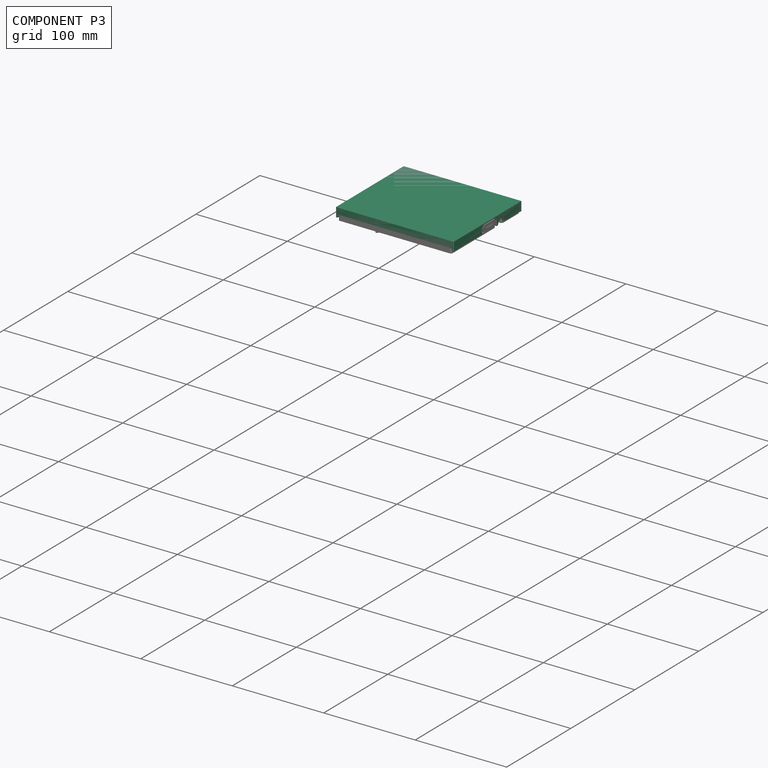
[diagram: component P3 — assembled]
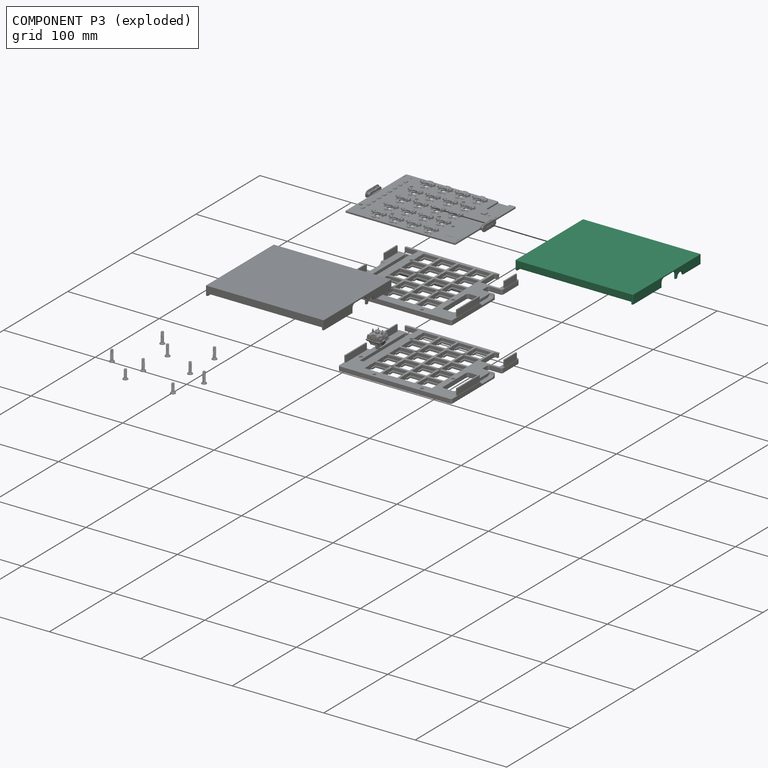
[diagram: component P3 — exploded]
COMPONENT P3 — recipe-attached ("Case", modeled in this document).
Held by: resting contact with P0 (derived edge); resting contact with P1 (derived edge); resting contact with P2 (derived edge); resting contact with P4 (derived edge); resting contact with P5 (derived edge); resting contact with P6 (derived edge).
Construction recipe (the document's own serialized feature program — sketch geometry with constraints, then the solid features built on it; lengths are millimeters unless a unit is written):

FEATURE [PartDesign::FeatureBase] BaseFeature  label="CaseBaseFeature"
  BaseFeature = -> Body
  Suppressed = false
FEATURE [PartDesign::Fillet] Fillet
  Base = -> BaseFeature [Edge4,Edge33,Edge32,Edge48,Edge45,Edge83,Edge43,Edge23,Edge100,Edge101,Edge108,Edge11,Edge66,Edge65,Edge74,Edge73,Edge109,Edge80,Edge79,Edge76]
  BaseFeature = -> BaseFeature
  Radius = 0.65
  SupportTransform = false
  Suppressed = false
  UseAllEdges = false
  expr: Radius = Spreadsheet.CaseWallFillet
FEATURE [PartDesign::Body] Body003  label="Case"
  AllowCompound = false
  BaseFeature = -> Body
  Group = -> [BaseFeature,Fillet]
  Origin = -> Origin034
  Tip = -> Fillet
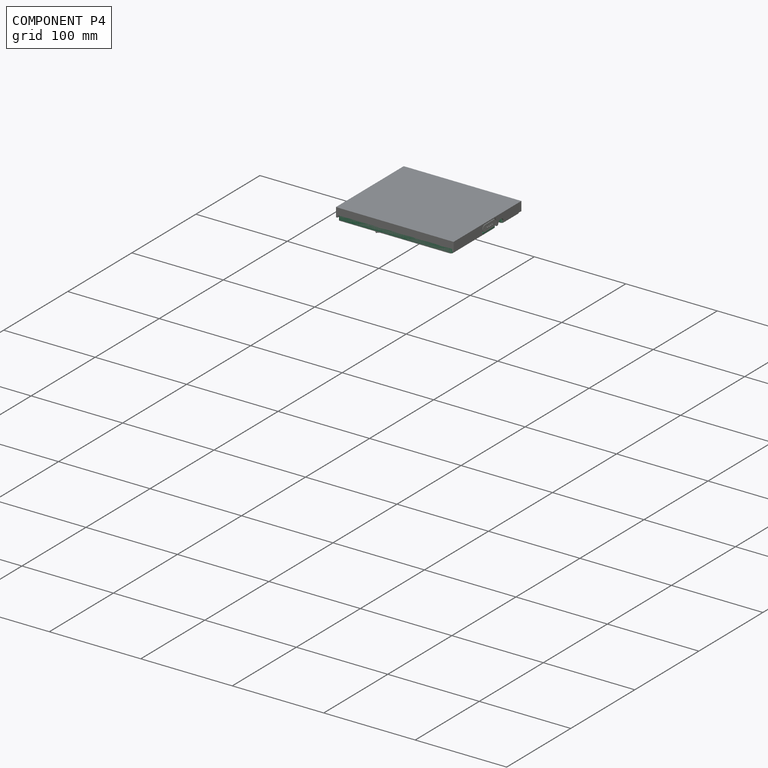
[diagram: component P4 — assembled]
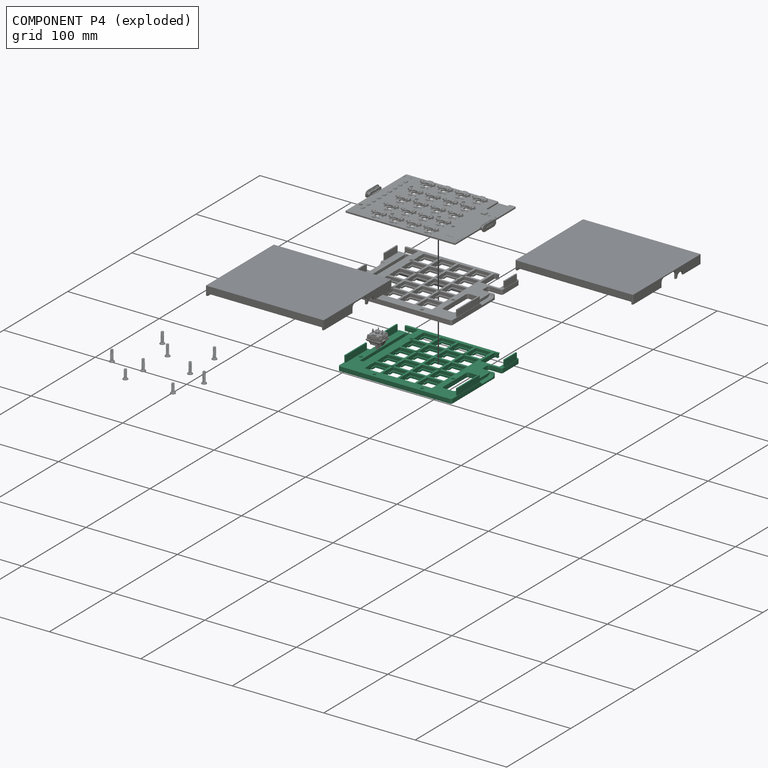
[diagram: component P4 — exploded]
COMPONENT P4 — recipe-attached ("Plate", modeled in this document).
Held by: resting contact with P0 (derived edge); resting contact with P1 (derived edge); resting contact with P2 (derived edge); resting contact with P3 (derived edge); resting contact with P5 (derived edge); resting contact with P6 (derived edge).
Construction recipe (the document's own serialized feature program — sketch geometry with constraints, then the solid features built on it; lengths are millimeters unless a unit is written):

FEATURE [PartDesign::FeatureBase] BaseFeature001  label="PlateBaseFeature"
  BaseFeature = -> Body002
  Suppressed = false
FEATURE [PartDesign::Fillet] Fillet001
  Base = -> BaseFeature001 [Edge32,Edge182,Edge5,Edge6,Edge15,Edge187]
  BaseFeature = -> BaseFeature001
  Radius = 0.65
  SupportTransform = false
  Suppressed = false
  UseAllEdges = false
  expr: Radius = Spreadsheet.CaseWallFillet
FEATURE [PartDesign::Body] Body004  label="Plate"
  AllowCompound = false
  BaseFeature = -> Body002
  Group = -> [BaseFeature001,Fillet001]
  Origin = -> Origin035
  Tip = -> Fillet001
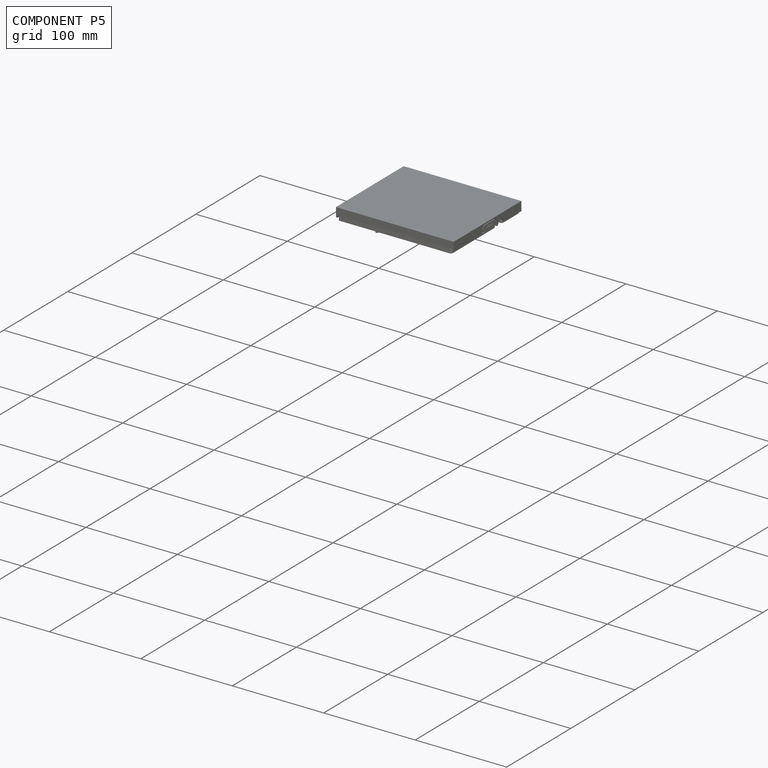
[diagram: component P5 — assembled]
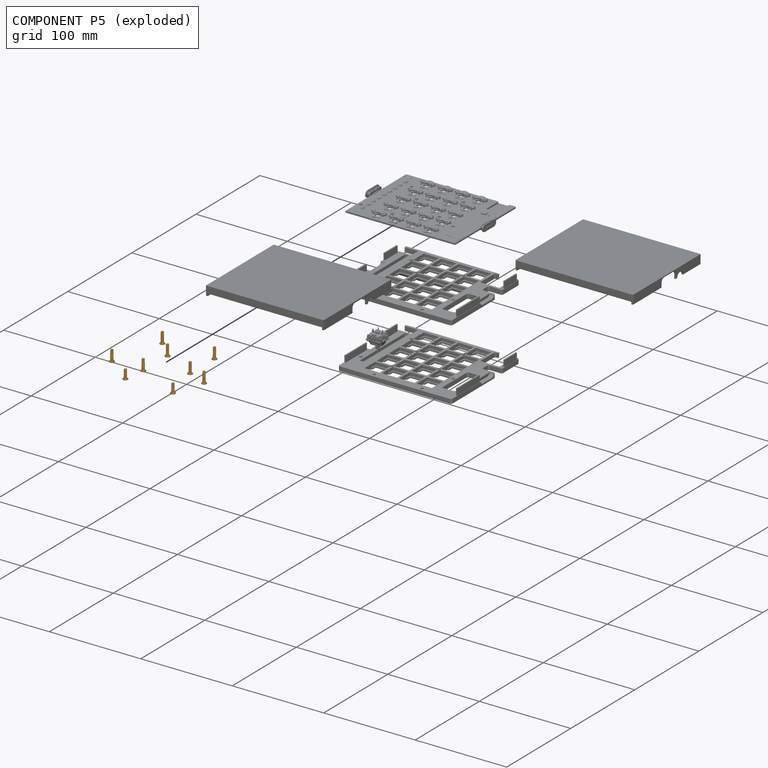
[diagram: component P5 — exploded]
COMPONENT P5 — geometry summary ("Screws"; no construction recipe available for this part):
  bounding box: 99.5 x 85.8 x 12.0 mm
  tessellated surface: 278,382 triangles
  volume: 707 mm^3 (1% of its bounding box)
Held by: resting contact with P0 (derived edge); resting contact with P1 (derived edge); resting contact with P2 (derived edge); resting contact with P3 (derived edge); resting contact with P4 (derived edge); resting contact with P6 (derived edge).
